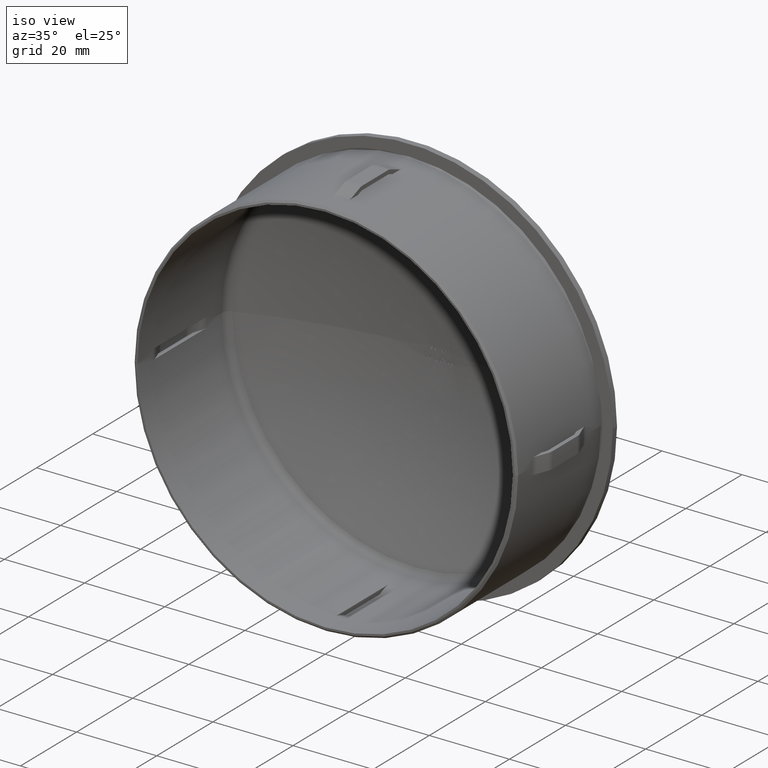
[diagram: clean part render]
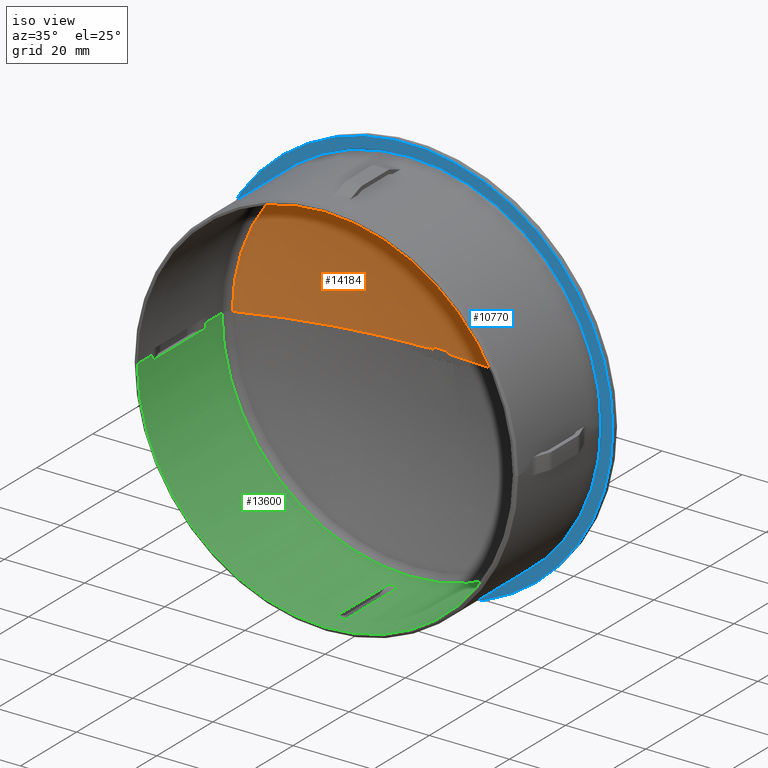
[diagram: same view with three faces highlighted in distinct colors, each labeled with its STEP entity id]
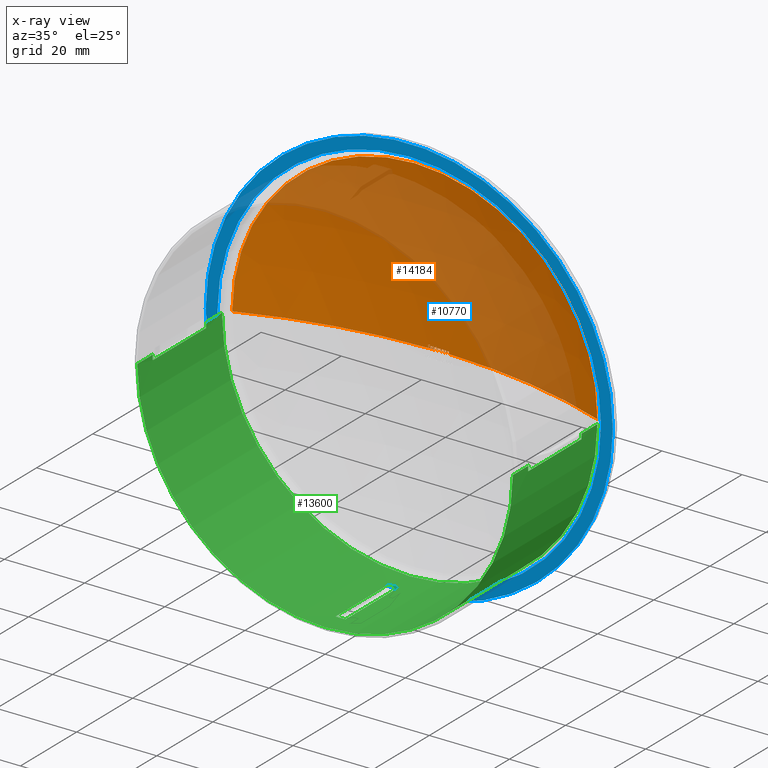
[diagram: x-ray of the same camera — body ghosted, the three highlighted faces saturated]
A machine part, iso view with three faces highlighted in distinct colors.
The next image is the same camera in x-ray (body ghosted, the three faces saturated) — at least one of them is partly hidden behind the body in this view.
Their STEP definitions:

[orange] entity #14184 — the highlighted spherical surface has radius 126.638 mm.
#65 = VERTEX_POINT ( 'NONE', #13784 ) ;
#116 = CARTESIAN_POINT ( 'NONE',  ( 1.113874654478329100, 40.49395068533862500, 0.5417085378907866600 ) ) ;
#142 = CARTESIAN_POINT ( 'NONE',  ( -2.182812500000023400, 40.47869841809005500, 0.7937500000000111700 ) ) ;
#146 = CARTESIAN_POINT ( 'NONE',  ( 2.442704646070592600, 40.47510240393526700, 0.5828538317450350200 ) ) ;
#160 = DIRECTION ( 'NONE',  ( -1.000000000000000000, 0.0000000000000000000, 0.0000000000000000000 ) ) ;
#256 = CARTESIAN_POINT ( 'NONE',  ( -1.874030332613674200, 40.48613294371286000, 4.759263301890666200E-012 ) ) ;
#288 = EDGE_CURVE ( 'NONE', #5728, #1700, #10845, .T. ) ;
#335 = ORIENTED_EDGE ( 'NONE', *, *, #288, .T. ) ;
#369 = ORIENTED_EDGE ( 'NONE', *, *, #14311, .T. ) ;
#458 = DIRECTION ( 'NONE',  ( -1.000000000000000000, -6.320148377769856400E-016, -0.0000000000000000000 ) ) ;
#462 = CARTESIAN_POINT ( 'NONE',  ( -0.1815919465855817300, 40.49855413779567200, 0.5773489675653843400 ) ) ;
#483 = EDGE_CURVE ( 'NONE', #8938, #10318, #667, .T. ) ;
#523 = CARTESIAN_POINT ( 'NONE',  ( -2.498277243589686500, -86.13761904761911100, 0.0000000000000000000 ) ) ;
#571 = VERTEX_POINT ( 'NONE', #14119 ) ;
#576 = EDGE_CURVE ( 'NONE', #11218, #11492, #11171, .T. ) ;
#579 = EDGE_CURVE ( 'NONE', #11806, #7008, #1690, .T. ) ;
#623 = VERTEX_POINT ( 'NONE', #14572 ) ;
#625 = CARTESIAN_POINT ( 'NONE',  ( -1.287299679487209100, 40.49084005459145900, 0.8141025641025752000 ) ) ;
#659 = CARTESIAN_POINT ( 'NONE',  ( 1.507645168752679500, 40.49000880974126900, 0.5092131814558219500 ) ) ;
#667 = CIRCLE ( 'NONE', #11274, 126.6373209808374600 ) ;
#677 = CIRCLE ( 'NONE', #12624, 126.6303318496846900 ) ;
#694 = CIRCLE ( 'NONE', #3098, 126.6188054265232100 ) ;
#722 = DIRECTION ( 'NONE',  ( 1.000000000000000000, 0.0000000000000000000, -1.224646799147353500E-016 ) ) ;
#726 = CIRCLE ( 'NONE', #5083, 126.6314832894040400 ) ;
#755 = B_SPLINE_CURVE_WITH_KNOTS ( 'NONE', 3,
 ( #2214, #11236, #11180, #13674, #2171, #11336 ),
 .UNSPECIFIED., .F., .F.,
 ( 4, 2, 4 ),
 ( 0.0000000000000000000, 0.0001076071497612918800, 0.0002152142995225837700 ),
 .UNSPECIFIED. ) ;
#757 = DIRECTION ( 'NONE',  ( -1.000000000000000000, -6.320148377769856400E-016, -0.0000000000000000000 ) ) ;
#765 = EDGE_CURVE ( 'NONE', #5449, #2779, #5142, .T. ) ;
#773 = AXIS2_PLACEMENT_3D ( 'NONE', #11762, #7200, #14033 ) ;
#774 = DIRECTION ( 'NONE',  ( 0.0000000000000000000, 0.0000000000000000000, -1.000000000000000000 ) ) ;
#780 = CARTESIAN_POINT ( 'NONE',  ( 1.736153452105818200, 40.48673328972336100, 0.5890140455116239500 ) ) ;
#818 = CARTESIAN_POINT ( 'NONE',  ( -0.3714342948718230600, 40.49945528140387600, 1.112441772578429000E-014 ) ) ;
#849 = CARTESIAN_POINT ( 'NONE',  ( -1.703891225962123500, 40.48853667362193700, -1.335820437918466300E-013 ) ) ;
#850 = AXIS2_PLACEMENT_3D ( 'NONE', #523, #2841, #14122 ) ;
#852 = B_SPLINE_CURVE_WITH_KNOTS ( 'NONE', 3,
 ( #14821, #4699, #9150, #1075, #2283, #12690 ),
 .UNSPECIFIED., .F., .F.,
 ( 4, 2, 4 ),
 ( 0.0000000000000000000, 0.0001240636173961032800, 0.0002481272347922065200 ),
 .UNSPECIFIED. ) ;
#894 = ORIENTED_EDGE ( 'NONE', *, *, #11177, .T. ) ;
#897 = CARTESIAN_POINT ( 'NONE',  ( 0.8609225207794702900, 40.49573620927573400, 0.5833033967726091200 ) ) ;
#905 = ORIENTED_EDGE ( 'NONE', *, *, #1456, .T. ) ;
#913 = CARTESIAN_POINT ( 'NONE',  ( -0.3002003205128486700, 40.49831574991742400, 0.5800480769230881300 ) ) ;
#948 = CARTESIAN_POINT ( 'NONE',  ( -1.968822051166393000, 40.48461693921296200, 0.1429498512476145600 ) ) ;
#952 = EDGE_CURVE ( 'NONE', #13918, #14369, #9070, .T. ) ;
#957 = CARTESIAN_POINT ( 'NONE',  ( -1.106361158164801600, 40.49439662035056400, 0.4435081468783821900 ) ) ;
#966 = CARTESIAN_POINT ( 'NONE',  ( 1.906847583824036200, 40.48490213269076300, 0.4345435017482310900 ) ) ;
#974 = VERTEX_POINT ( 'NONE', #2689 ) ;
#983 = CIRCLE ( 'NONE', #14764, 126.6376190476191100 ) ;
#1008 = CARTESIAN_POINT ( 'NONE',  ( 0.8577629413385673400, 40.49709499551512000, 6.835745725601507900E-012 ) ) ;
#1064 = EDGE_CURVE ( 'NONE', #8289, #12890, #1969, .T. ) ;
#1066 = CARTESIAN_POINT ( 'NONE',  ( 0.8577629413385673400, 40.49709499551512000, 6.835745725601507900E-012 ) ) ;
#1075 = CARTESIAN_POINT ( 'NONE',  ( 0.05059372269582837500, 40.49889518511244500, 0.5282113515575032100 ) ) ;
#1082 = CARTESIAN_POINT ( 'NONE',  ( -1.754959128073320100, 40.48783145951887300, 0.06188333623160507300 ) ) ;
#1093 = CARTESIAN_POINT ( 'NONE',  ( 2.152283653846129400, 40.48081644234412100, 0.4754231770833444700 ) ) ;
#1100 = CARTESIAN_POINT ( 'NONE',  ( 0.4831689009777119800, 40.49831045789626700, 0.4421491648293608400 ) ) ;
#1111 = VERTEX_POINT ( 'NONE', #5670 ) ;
#1129 = CARTESIAN_POINT ( 'NONE',  ( -2.053182659338479000, 40.48265060214616500, 0.4236794445332151000 ) ) ;
#1138 = DIRECTION ( 'NONE',  ( 5.169545160610235800E-015, -1.000000000000000000, -0.0000000000000000000 ) ) ;
#1146 = CARTESIAN_POINT ( 'NONE',  ( 0.0000000000000000000, -86.13761904761911100, 0.0000000000000000000 ) ) ;
#1154 = CARTESIAN_POINT ( 'NONE',  ( -1.798180839342977700, 40.48721807242277000, 0.06105769230770344300 ) ) ;
#1155 = EDGE_CURVE ( 'NONE', #9391, #6423, #852, .T. ) ;
#1188 = CARTESIAN_POINT ( 'NONE',  ( -0.3714342948717430600, -86.13761904761911100, 0.0000000000000000000 ) ) ;
#1209 = DIRECTION ( 'NONE',  ( 0.0000000000000000000, 0.0000000000000000000, -1.000000000000000000 ) ) ;
#1227 = CARTESIAN_POINT ( 'NONE',  ( 0.0000000000000000000, -86.13761904761911100, 0.4681089743589854600 ) ) ;
#1234 = CIRCLE ( 'NONE', #11930, 126.6350022508193500 ) ;
#1365 = DIRECTION ( 'NONE',  ( -1.000000000000000000, -6.320148377769856400E-016, -0.0000000000000000000 ) ) ;
#1376 = AXIS2_PLACEMENT_3D ( 'NONE', #14768, #12634, #3343 ) ;
#1399 = CARTESIAN_POINT ( 'NONE',  ( -2.080131132574111400, 40.48265933664092800, 0.2564008354875604900 ) ) ;
#1422 = CIRCLE ( 'NONE', #11570, 126.6321644984563800 ) ;
#1456 = EDGE_CURVE ( 'NONE', #12063, #13903, #6714, .T. ) ;
#1464 = EDGE_LOOP ( 'NONE', ( #6238, #11557, #12539, #8379, #13953, #8761, #10059, #7775, #4738, #335, #8214, #13899, #5616, #12711, #13249, #13691, #7440, #2723, #7504, #6508, #2598, #10907, #10337, #11209, #10194, #905, #13618, #6683, #369, #1638, #7549, #10605, #11018, #11133, #3621, #5446, #2359, #894, #12612, #9342, #6459, #7677, #11612, #14738, #6090, #1466, #2147, #10452, #13153, #14617, #6609, #11952, #9860, #8160, #13125, #8838, #13348, #8701, #5443, #8226, #10353, #1930, #10686, #3421, #11223 ) ) ;
#1466 = ORIENTED_EDGE ( 'NONE', *, *, #2028, .T. ) ;
#1469 = AXIS2_PLACEMENT_3D ( 'NONE', #10800, #5137, #6658 ) ;
#1477 = EDGE_CURVE ( 'NONE', #9671, #12255, #13527, .T. ) ;
#1550 = CARTESIAN_POINT ( 'NONE',  ( -2.081049679487208400, 40.48257127016664500, 0.2884339943910367300 ) ) ;
#1598 = CARTESIAN_POINT ( 'NONE',  ( 2.589863782051257800, 40.47316806890220400, 0.2962252103365495800 ) ) ;
#1638 = ORIENTED_EDGE ( 'NONE', *, *, #14399, .T. ) ;
#1641 = CARTESIAN_POINT ( 'NONE',  ( 1.701347155448683900, 40.48719531004392300, 0.5902243589743702000 ) ) ;
#1690 = B_SPLINE_CURVE_WITH_KNOTS ( 'NONE', 3,
 ( #3247, #780, #4347, #11191, #3142, #8883, #966, #12227, #13487, #9919 ),
 .UNSPECIFIED., .F., .F.,
 ( 4, 2, 2, 2, 4 ),
 ( 0.0000000000000000000, 0.0001035280284946486300, 0.0002070560569892972600, 0.0003105840854839457500, 0.0004141121139785942600 ),
 .UNSPECIFIED. ) ;
#1700 = VERTEX_POINT ( 'NONE', #14193 ) ;
#1709 = CARTESIAN_POINT ( 'NONE',  ( -0.2009732151805146700, 40.49855914770030600, 0.5697788243709537300 ) ) ;
#1739 = DIRECTION ( 'NONE',  ( 1.000000000000000000, 6.320148377769856400E-016, -0.0000000000000000000 ) ) ;
#1779 = B_SPLINE_CURVE_WITH_KNOTS ( 'NONE', 3,
 ( #13605, #6598, #8963, #9935, #14593, #2090, #7761, #897, #11163, #3271 ),
 .UNSPECIFIED., .F., .F.,
 ( 4, 2, 2, 2, 4 ),
 ( 0.0000000000000000000, 0.0001178459133988443100, 0.0002356918267976886100, 0.0003535377401965329300, 0.0004713836535953772300 ),
 .UNSPECIFIED. ) ;
#1795 = AXIS2_PLACEMENT_3D ( 'NONE', #11618, #9444, #11512 ) ;
#1831 = DIRECTION ( 'NONE',  ( 0.0000000000000000000, 0.0000000000000000000, -1.000000000000000000 ) ) ;
#1895 = CARTESIAN_POINT ( 'NONE',  ( 0.0000000000000000000, -86.13761904761911100, 0.5800480769230881300 ) ) ;
#1930 = ORIENTED_EDGE ( 'NONE', *, *, #1064, .T. ) ;
#1969 = B_SPLINE_CURVE_WITH_KNOTS ( 'NONE', 3,
 ( #10759, #7284, #5082, #7388, #8591, #8538 ),
 .UNSPECIFIED., .F., .F.,
 ( 4, 2, 4 ),
 ( 0.0000000000000000000, 0.0001371516647454723900, 0.0002743033294909447700 ),
 .UNSPECIFIED. ) ;
#1993 = CARTESIAN_POINT ( 'NONE',  ( -0.5342548076923403500, 40.49625622620121800, 0.8141025641025752000 ) ) ;
#2028 = EDGE_CURVE ( 'NONE', #10894, #12071, #5290, .T. ) ;
#2045 = DIRECTION ( 'NONE',  ( 1.000000000000000000, 0.0000000000000000000, 0.0000000000000000000 ) ) ;
#2083 = CIRCLE ( 'NONE', #11310, 126.6362906211263100 ) ;
#2090 = CARTESIAN_POINT ( 'NONE',  ( 0.7548045872638383700, 40.49664343793935500, 0.5309942296348032500 ) ) ;
#2093 = DIRECTION ( 'NONE',  ( 0.0000000000000000000, 0.0000000000000000000, -1.000000000000000000 ) ) ;
#2113 = CARTESIAN_POINT ( 'NONE',  ( -0.9925411531990873100, 40.49490548081447400, 0.5537938546887607400 ) ) ;
#2127 = CARTESIAN_POINT ( 'NONE',  ( -1.140078646096380500, 40.49467178910942500, 0.2252924640883967900 ) ) ;
#2141 = CARTESIAN_POINT ( 'NONE',  ( -0.2638665652800096800, 40.49864008596343700, 0.5242185973020440100 ) ) ;
#2147 = ORIENTED_EDGE ( 'NONE', *, *, #10124, .T. ) ;
#2158 = VERTEX_POINT ( 'NONE', #2958 ) ;
#2162 = CARTESIAN_POINT ( 'NONE',  ( 0.3293689539589274600, 40.49820590089823500, 0.5890257803546735700 ) ) ;
#2170 = CARTESIAN_POINT ( 'NONE',  ( 0.08443134014420265700, 40.49917182316205100, 0.4501414763621906000 ) ) ;
#2171 = CARTESIAN_POINT ( 'NONE',  ( -1.491914008717621700, 40.49083565267776000, 0.3106440784940217600 ) ) ;
#2189 = CARTESIAN_POINT ( 'NONE',  ( -0.2828457914227988100, 40.49868768505035600, 0.5023678109066037600 ) ) ;
#2204 = CARTESIAN_POINT ( 'NONE',  ( 0.4420740864398106100, 40.49812428812621300, 0.5298024236254356100 ) ) ;
#2206 = CARTESIAN_POINT ( 'NONE',  ( 2.589863782051337700, -86.13761904761911100, 0.0000000000000000000 ) ) ;
#2214 = CARTESIAN_POINT ( 'NONE',  ( -1.553950070112208200, 40.48957062692366500, 0.4760591947115496200 ) ) ;
#2241 = DIRECTION ( 'NONE',  ( 1.224646799147353200E-016, 6.330866933989015100E-031, 1.000000000000000000 ) ) ;
#2262 = CARTESIAN_POINT ( 'NONE',  ( 0.4935496794871513400, 40.49864846570351800, 0.3141927083333444500 ) ) ;
#2266 = CARTESIAN_POINT ( 'NONE',  ( -1.287299679487209100, 40.49345698660360400, 1.112441772578429000E-014 ) ) ;
#2268 = CIRCLE ( 'NONE', #6113, 126.6367538751607100 ) ;
#2283 = CARTESIAN_POINT ( 'NONE',  ( 0.07027421903086755700, 40.49904137580754300, 0.4894951906692235300 ) ) ;
#2287 = CARTESIAN_POINT ( 'NONE',  ( -0.9230864176357933500, 40.49663567643048600, 6.834850835292732900E-012 ) ) ;
#2301 = CIRCLE ( 'NONE', #14232, 126.6376190476191100 ) ;
#2331 = EDGE_CURVE ( 'NONE', #2903, #9731, #1779, .T. ) ;
#2350 = CARTESIAN_POINT ( 'NONE',  ( -2.081049679487208400, 40.48257127016664500, 0.2884339943910367300 ) ) ;
#2359 = ORIENTED_EDGE ( 'NONE', *, *, #10543, .T. ) ;
#2371 = VERTEX_POINT ( 'NONE', #11424 ) ;
#2372 = CARTESIAN_POINT ( 'NONE',  ( -2.182812499999943000, -86.13761904761911100, 0.0000000000000000000 ) ) ;
#2450 = CARTESIAN_POINT ( 'NONE',  ( 0.6360176282051007700, 40.49806707937033000, 0.2916140825320623900 ) ) ;
#2488 = CIRCLE ( 'NONE', #11429, 45.56968640515930200 ) ;
#2497 = AXIS2_PLACEMENT_3D ( 'NONE', #2621, #4833, #13965 ) ;
#2530 = EDGE_CURVE ( 'NONE', #3790, #6777, #983, .T. ) ;
#2531 = VERTEX_POINT ( 'NONE', #10865 ) ;
#2593 = CARTESIAN_POINT ( 'NONE',  ( -1.521354166666695400, 40.49077254446915900, 0.1499411558493699800 ) ) ;
#2598 = ORIENTED_EDGE ( 'NONE', *, *, #12585, .T. ) ;
#2605 = AXIS2_PLACEMENT_3D ( 'NONE', #12842, #10578, #12901 ) ;
#2606 = CARTESIAN_POINT ( 'NONE',  ( -1.934084801466865200, 40.48523203262823200, 0.02150612168951463600 ) ) ;
#2614 = EDGE_CURVE ( 'NONE', #12890, #5078, #6368, .T. ) ;
#2621 = CARTESIAN_POINT ( 'NONE',  ( -0.2671245571333954500, -86.13761904761911100, -0.5086869556894320100 ) ) ;
#2634 = B_SPLINE_CURVE_WITH_KNOTS ( 'NONE', 3,
 ( #2170, #11446, #6765, #9132, #14761, #10359, #4481, #13673 ),
 .UNSPECIFIED., .F., .F.,
 ( 4, 2, 2, 4 ),
 ( 0.0000000000000000000, 0.0001338898262623305200, 0.0002008347393934958100, 0.0002677796525246612000 ),
 .UNSPECIFIED. ) ;
#2689 = CARTESIAN_POINT ( 'NONE',  ( -2.498277243589766400, 40.47476436318948600, 0.3866987179487290600 ) ) ;
#2716 = EDGE_CURVE ( 'NONE', #8267, #4194, #7266, .T. ) ;
#2717 = CARTESIAN_POINT ( 'NONE',  ( -2.076355613942443900, 40.48278210726160600, 0.2243124107710218500 ) ) ;
#2723 = ORIENTED_EDGE ( 'NONE', *, *, #9620, .T. ) ;
#2749 = CARTESIAN_POINT ( 'NONE',  ( 1.918229166666712600, -86.13761904761911100, 0.0000000000000000000 ) ) ;
#2778 = CARTESIAN_POINT ( 'NONE',  ( 1.538589708259875200, 40.48950682326084700, 0.5404987622247022800 ) ) ;
#2779 = VERTEX_POINT ( 'NONE', #3704 ) ;
#2782 = CARTESIAN_POINT ( 'NONE',  ( -0.1614746362636222100, 40.49855557863156700, 0.5828893732747186800 ) ) ;
#2841 = DIRECTION ( 'NONE',  ( -1.000000000000000000, -6.320148377769856400E-016, -0.0000000000000000000 ) ) ;
#2848 = DIRECTION ( 'NONE',  ( -6.318716784570241000E-016, 1.000000000000000000, 0.0000000000000000000 ) ) ;
#2885 = CARTESIAN_POINT ( 'NONE',  ( 1.701347155448683900, 40.48719531004392300, 0.5902243589743702000 ) ) ;
#2903 = VERTEX_POINT ( 'NONE', #2450 ) ;
#2948 = CARTESIAN_POINT ( 'NONE',  ( -0.3714342948718230600, 40.49812684919688600, 0.5800480769230881300 ) ) ;
#2951 = DIRECTION ( 'NONE',  ( 1.000000000000000000, 0.0000000000000000000, -1.224646799147353500E-016 ) ) ;
#2958 = CARTESIAN_POINT ( 'NONE',  ( -1.874030332613674200, 40.48613294371286000, 4.759263301890666200E-012 ) ) ;
#2999 = CARTESIAN_POINT ( 'NONE',  ( -1.143714491090554600, 40.49440813621804100, 0.3312709574502290000 ) ) ;
#3016 = DIRECTION ( 'NONE',  ( 0.0000000000000000000, 0.0000000000000000000, -1.000000000000000000 ) ) ;
#3056 = VERTEX_POINT ( 'NONE', #12998 ) ;
#3098 = AXIS2_PLACEMENT_3D ( 'NONE', #2372, #7019, #10348 ) ;
#3142 = CARTESIAN_POINT ( 'NONE',  ( 1.859476554283574100, 40.48525379676388500, 0.5274411440378364800 ) ) ;
#3181 = DIRECTION ( 'NONE',  ( -1.000000000000000000, -6.320148377769856400E-016, -0.0000000000000000000 ) ) ;
#3190 = EDGE_CURVE ( 'NONE', #13903, #7827, #13694, .T. ) ;
#3247 = CARTESIAN_POINT ( 'NONE',  ( 1.701347155448683900, 40.48719531004392300, 0.5902243589743702000 ) ) ;
#3263 = CARTESIAN_POINT ( 'NONE',  ( -0.2354956324971449200, 40.49858814326690000, 0.5499938482189633500 ) ) ;
#3271 = CARTESIAN_POINT ( 'NONE',  ( 0.9406700721153572500, 40.49513079645321100, 0.5902243589743702000 ) ) ;
#3342 = CARTESIAN_POINT ( 'NONE',  ( -0.5342548076922604100, -86.13761904761911100, 0.0000000000000000000 ) ) ;
#3343 = DIRECTION ( 'NONE',  ( -1.000000000000000000, 0.0000000000000000000, 0.0000000000000000000 ) ) ;
#3408 = CIRCLE ( 'NONE', #9317, 126.6362906211263100 ) ;
#3420 = B_SPLINE_CURVE_WITH_KNOTS ( 'NONE', 3,
 ( #256, #9547, #2606, #6046, #3677, #10583, #6002, #2717, #1399, #1550 ),
 .UNSPECIFIED., .F., .F.,
 ( 4, 2, 2, 2, 4 ),
 ( 8.518635623988715200E-005, 0.0001792175327766087100, 0.0002732487093133303200, 0.0003672798858500517700, 0.0004613110623867733200 ),
 .UNSPECIFIED. ) ;
#3421 = ORIENTED_EDGE ( 'NONE', *, *, #4746, .T. ) ;
#3445 = DIRECTION ( 'NONE',  ( 6.318370935221633200E-016, -1.000000000000000000, 0.0000000000000000000 ) ) ;
#3461 = CARTESIAN_POINT ( 'NONE',  ( 2.372981770833309000, 40.47638946159469200, 0.5902243589743702000 ) ) ;
#3499 = CARTESIAN_POINT ( 'NONE',  ( 1.175360576923049500, 40.49321696712328100, 0.5800480769230881300 ) ) ;
#3502 = CARTESIAN_POINT ( 'NONE',  ( -0.9865214833324578200, 40.49617327352319100, 0.01660923644644391900 ) ) ;
#3516 = DIRECTION ( 'NONE',  ( 1.000000000000000000, 5.177178324978228000E-015, 0.0000000000000000000 ) ) ;
#3565 = CARTESIAN_POINT ( 'NONE',  ( 5.160808918905501900E-014, 32.01689943976368400, 0.0000000000000000000 ) ) ;
#3572 = VERTEX_POINT ( 'NONE', #2593 ) ;
#3602 = CIRCLE ( 'NONE', #12307, 126.6376190476191100 ) ;
#3618 = CIRCLE ( 'NONE', #14069, 126.6376190476191100 ) ;
#3621 = ORIENTED_EDGE ( 'NONE', *, *, #4059, .T. ) ;
#3625 = CARTESIAN_POINT ( 'NONE',  ( 2.589761193727327300, 40.47308869170936400, 0.3310490480453741100 ) ) ;
#3677 = CARTESIAN_POINT ( 'NONE',  ( -2.006897853348856800, 40.48407352959863900, 0.08300136449815209700 ) ) ;
#3704 = CARTESIAN_POINT ( 'NONE',  ( -0.3002003205128486700, 40.49873737314670300, 0.4792392828525752200 ) ) ;
#3732 = CARTESIAN_POINT ( 'NONE',  ( -1.616334709986323000, 40.48853087744430500, 0.5423899066799376900 ) ) ;
#3789 = CARTESIAN_POINT ( 'NONE',  ( -0.5342548076923403500, 40.49887304628864400, 1.112441772578429000E-014 ) ) ;
#3790 = VERTEX_POINT ( 'NONE', #6911 ) ;
#3800 = EDGE_CURVE ( 'NONE', #9042, #5728, #8361, .T. ) ;
#3835 = CARTESIAN_POINT ( 'NONE',  ( -2.569511217948741200, 40.47144117750158200, 0.7937500000000111700 ) ) ;
#3884 = CARTESIAN_POINT ( 'NONE',  ( 1.246594551282103900, -86.13761904761911100, 0.0000000000000000000 ) ) ;
#3887 = CARTESIAN_POINT ( 'NONE',  ( -0.1912927241915268800, 40.49855664536995200, 0.5735599340862481700 ) ) ;
#3896 = CIRCLE ( 'NONE', #10681, 126.6364920939077600 ) ;
#3897 = CARTESIAN_POINT ( 'NONE',  ( -1.664682473393367600, 40.48906426959216300, 0.01021285227223357000 ) ) ;
#3943 = B_SPLINE_CURVE_WITH_KNOTS ( 'NONE', 3,
 ( #7545, #2999, #10962, #957, #12222, #6719, #2113, #5388, #11287, #8983 ),
 .UNSPECIFIED., .F., .F.,
 ( 4, 2, 2, 2, 4 ),
 ( 0.0000000000000000000, 0.0001178444341299800800, 0.0002356888682599601700, 0.0003535333023899403000, 0.0004713777365199206600 ),
 .UNSPECIFIED. ) ;
#3950 = CARTESIAN_POINT ( 'NONE',  ( -2.498277243589766400, 40.47535488816704700, 1.112441772578428900E-014 ) ) ;
#3958 = AXIS2_PLACEMENT_3D ( 'NONE', #12077, #6480, #8790 ) ;
#4039 = VERTEX_POINT ( 'NONE', #10737 ) ;
#4059 = EDGE_CURVE ( 'NONE', #11218, #8593, #4126, .T. ) ;
#4080 = EDGE_CURVE ( 'NONE', #7735, #13811, #3602, .T. ) ;
#4084 = CARTESIAN_POINT ( 'NONE',  ( -1.287299679487129200, -86.13761904761911100, 0.0000000000000000000 ) ) ;
#4126 = CIRCLE ( 'NONE', #10282, 126.6115483285420400 ) ;
#4167 = CARTESIAN_POINT ( 'NONE',  ( -1.553950070112208200, 40.48957062692366500, 0.4760591947115496200 ) ) ;
#4184 = VERTEX_POINT ( 'NONE', #14329 ) ;
#4194 = VERTEX_POINT ( 'NONE', #625 ) ;
#4217 = VERTEX_POINT ( 'NONE', #849 ) ;
#4347 = CARTESIAN_POINT ( 'NONE',  ( 1.771073892251214600, 40.48627813513167000, 0.5828528003783671800 ) ) ;
#4363 = VERTEX_POINT ( 'NONE', #3499 ) ;
#4389 = DIRECTION ( 'NONE',  ( -1.000000000000000000, 0.0000000000000000000, 0.0000000000000000000 ) ) ;
#4393 = DIRECTION ( 'NONE',  ( 1.224646799147353200E-016, 6.330866933989015100E-031, 1.000000000000000000 ) ) ;
#4406 = DIRECTION ( 'NONE',  ( -1.000000000000000000, 0.0000000000000000000, 0.0000000000000000000 ) ) ;
#4408 = CARTESIAN_POINT ( 'NONE',  ( -0.2888316783541823900, 40.49870428410031300, 0.4948133354278164700 ) ) ;
#4424 = DIRECTION ( 'NONE',  ( -1.000000000000000000, -6.320148377769856400E-016, -0.0000000000000000000 ) ) ;
#4443 = DIRECTION ( 'NONE',  ( -1.000000000000000000, 0.0000000000000000000, 0.0000000000000000000 ) ) ;
#4447 = CARTESIAN_POINT ( 'NONE',  ( -1.144831730769263500, 40.49448935931295100, 0.2916140825320623900 ) ) ;
#4472 = CARTESIAN_POINT ( 'NONE',  ( 0.4922740388655519300, 40.49848145775315100, 0.3785562845962058800 ) ) ;
#4481 = CARTESIAN_POINT ( 'NONE',  ( 0.2747382818813308100, 40.49833264967836000, 0.5893377909098203000 ) ) ;
#4515 = CARTESIAN_POINT ( 'NONE',  ( 0.0000000000000000000, -86.13761904761911100, 0.3866987179487290600 ) ) ;
#4542 = DIRECTION ( 'NONE',  ( 1.000000000000000000, 6.320148377769856400E-016, -0.0000000000000000000 ) ) ;
#4552 = CARTESIAN_POINT ( 'NONE',  ( -2.080108026953721100, 40.48250716442505100, 0.3233699142222983300 ) ) ;
#4588 = AXIS2_PLACEMENT_3D ( 'NONE', #4515, #5599, #6695 ) ;
#4594 = DIRECTION ( 'NONE',  ( -6.318425403950293600E-016, 1.000000000000000000, 0.0000000000000000000 ) ) ;
#4609 = DIRECTION ( 'NONE',  ( -6.318380360046931400E-016, 1.000000000000000000, 0.0000000000000000000 ) ) ;
#4656 = CARTESIAN_POINT ( 'NONE',  ( -2.014267828525670100, 40.48306197029933900, 0.4821013621794982800 ) ) ;
#4699 = CARTESIAN_POINT ( 'NONE',  ( -0.05840257159376230400, 40.49862457965586100, 0.5888072035090838900 ) ) ;
#4708 = CARTESIAN_POINT ( 'NONE',  ( 2.081049679487235100, -86.13761904761911100, 0.0000000000000000000 ) ) ;
#4709 = CARTESIAN_POINT ( 'NONE',  ( -1.986338882442912000, 40.48337882993276100, 0.5155702470927420200 ) ) ;
#4738 = ORIENTED_EDGE ( 'NONE', *, *, #3800, .T. ) ;
#4746 = EDGE_CURVE ( 'NONE', #5078, #12980, #1234, .T. ) ;
#4765 = CARTESIAN_POINT ( 'NONE',  ( 2.407786157643168100, 40.47574280441102700, 0.5890141119224202600 ) ) ;
#4826 = CIRCLE ( 'NONE', #9582, 126.6376190476191100 ) ;
#4833 = DIRECTION ( 'NONE',  ( -0.4649210893991452300, -2.938370268957002000E-016, -0.8853521223964575500 ) ) ;
#4874 = AXIS2_PLACEMENT_3D ( 'NONE', #13772, #11450, #7986 ) ;
#4919 = CARTESIAN_POINT ( 'NONE',  ( -1.553950070112208200, 40.48957062692366500, 0.4760591947115496200 ) ) ;
#4968 = CIRCLE ( 'NONE', #14557, 126.6289628658262500 ) ;
#4979 = CARTESIAN_POINT ( 'NONE',  ( -0.2197440905448999300, 40.49856758306681600, 0.5608085436698829800 ) ) ;
#5022 = VERTEX_POINT ( 'NONE', #12202 ) ;
#5063 = CARTESIAN_POINT ( 'NONE',  ( 2.569039741785259500, 40.47307536063682700, 0.4689039261022389100 ) ) ;
#5070 = CARTESIAN_POINT ( 'NONE',  ( -2.182812500000023400, 40.48032107789341400, 0.4681089743589854600 ) ) ;
#5078 = VERTEX_POINT ( 'NONE', #12346 ) ;
#5079 = CARTESIAN_POINT ( 'NONE',  ( -0.1414824482901776100, 40.49855859818296000, 0.5877716836647805000 ) ) ;
#5082 = CARTESIAN_POINT ( 'NONE',  ( -0.7476072039273653500, 40.49647132792182400, 0.5804114450408827100 ) ) ;
#5083 = AXIS2_PLACEMENT_3D ( 'NONE', #3884, #1365, #8386 ) ;
#5094 = CARTESIAN_POINT ( 'NONE',  ( -0.1001727764423358400, 40.49858493319687400, 0.5902243589743703100 ) ) ;
#5111 = B_SPLINE_CURVE_WITH_KNOTS ( 'NONE', 3,
 ( #6995, #5758, #10407, #7025, #3897, #8207 ),
 .UNSPECIFIED., .F., .F.,
 ( 4, 2, 4 ),
 ( 2.710505431213761100E-020, 0.0001210207426605129900, 0.0002420414853210259600 ),
 .UNSPECIFIED. ) ;
#5137 = DIRECTION ( 'NONE',  ( 0.0000000000000000000, -0.0000000000000000000, 1.000000000000000000 ) ) ;
#5142 = CIRCLE ( 'NONE', #12163, 126.6372632277619200 ) ;
#5179 = EDGE_CURVE ( 'NONE', #12084, #11492, #2488, .T. ) ;
#5200 = CARTESIAN_POINT ( 'NONE',  ( 0.0000000000000000000, -86.13761904761911100, 0.0000000000000000000 ) ) ;
#5219 = DIRECTION ( 'NONE',  ( -1.000000000000000000, 0.0000000000000000000, 0.0000000000000000000 ) ) ;
#5244 = CARTESIAN_POINT ( 'NONE',  ( 0.0000000000000000000, -86.13761904761911100, 0.0000000000000000000 ) ) ;
#5284 = CARTESIAN_POINT ( 'NONE',  ( -1.358533653846183400, 40.49009585467384700, 0.8141025641025752000 ) ) ;
#5290 = B_SPLINE_CURVE_WITH_KNOTS ( 'NONE', 3,
 ( #2350, #4552, #6786, #1129, #11258, #4656 ),
 .UNSPECIFIED., .F., .F.,
 ( 4, 2, 4 ),
 ( 5.421010862427522200E-020, 0.0001047135199126370000, 0.0002094270398252739500 ),
 .UNSPECIFIED. ) ;
#5388 = CARTESIAN_POINT ( 'NONE',  ( -0.9199265318383245100, 40.49532132032069900, 0.5833034925619907700 ) ) ;
#5405 = EDGE_CURVE ( 'NONE', #1700, #12064, #2301, .T. ) ;
#5437 = CARTESIAN_POINT ( 'NONE',  ( -2.498277243589766400, 40.47335101798683600, 0.7123397435897547100 ) ) ;
#5443 = ORIENTED_EDGE ( 'NONE', *, *, #2530, .F. ) ;
#5446 = ORIENTED_EDGE ( 'NONE', *, *, #9567, .T. ) ;
#5449 = VERTEX_POINT ( 'NONE', #913 ) ;
#5480 = AXIS2_PLACEMENT_3D ( 'NONE', #1895, #3016, #5219 ) ;
#5550 = DIRECTION ( 'NONE',  ( 0.0000000000000000000, 0.0000000000000000000, 1.000000000000000000 ) ) ;
#5562 = CARTESIAN_POINT ( 'NONE',  ( -1.854561819451444200, 40.48640558352234800, 0.06571690854859803300 ) ) ;
#5574 = CARTESIAN_POINT ( 'NONE',  ( 0.9406700721153572500, 40.49513079645321100, 0.5902243589743702000 ) ) ;
#5599 = DIRECTION ( 'NONE',  ( 0.0000000000000000000, 0.0000000000000000000, 1.000000000000000000 ) ) ;
#5614 = DIRECTION ( 'NONE',  ( -1.000000000000000000, 0.0000000000000000000, 0.0000000000000000000 ) ) ;
#5616 = ORIENTED_EDGE ( 'NONE', *, *, #2331, .T. ) ;
#5643 = CARTESIAN_POINT ( 'NONE',  ( -1.490825320512849400, 40.49092633243086000, 0.2747596153846265100 ) ) ;
#5654 = B_SPLINE_CURVE_WITH_KNOTS ( 'NONE', 3,
 ( #10997, #14805, #9019, #7814, #948, #8025, #11381, #5562, #11278, #1154 ),
 .UNSPECIFIED., .F., .F.,
 ( 4, 2, 2, 2, 4 ),
 ( 1.084202172485504400E-019, 8.321969487943843100E-005, 0.0001664393897588767500, 0.0002496590846383150800, 0.0003328787795177534000 ),
 .UNSPECIFIED. ) ;
#5666 = EDGE_CURVE ( 'NONE', #9731, #8329, #10622, .T. ) ;
#5670 = CARTESIAN_POINT ( 'NONE',  ( -0.2197440905448999300, 40.49856758306681600, 0.5608085436698829800 ) ) ;
#5687 = CARTESIAN_POINT ( 'NONE',  ( 2.179280579521641700, 40.48023066614107500, 0.5092141770074037900 ) ) ;
#5691 = VERTEX_POINT ( 'NONE', #9468 ) ;
#5695 = CARTESIAN_POINT ( 'NONE',  ( 0.3617744789126884900, 40.49814398695986000, 0.5832879922562075300 ) ) ;
#5728 = VERTEX_POINT ( 'NONE', #12923 ) ;
#5729 = CARTESIAN_POINT ( 'NONE',  ( -1.584637920673105800, 40.48995270645881600, 0.1831730769230880400 ) ) ;
#5757 = VERTEX_POINT ( 'NONE', #8285 ) ;
#5758 = CARTESIAN_POINT ( 'NONE',  ( -1.541357321586448400, 40.49057419262778300, 0.1144945273963227400 ) ) ;
#5777 = DIRECTION ( 'NONE',  ( 1.000000000000000000, 6.320148377769856400E-016, -0.0000000000000000000 ) ) ;
#5798 = DIRECTION ( 'NONE',  ( 1.000000000000000000, 0.0000000000000000000, 0.0000000000000000000 ) ) ;
#5899 = SPHERICAL_SURFACE ( 'NONE', #1469, 126.6376190476191100 ) ;
#5911 = CIRCLE ( 'NONE', #14551, 126.6310760342226900 ) ;
#5936 = CARTESIAN_POINT ( 'NONE',  ( -1.636681254280220900, 40.48938053258189000, 0.1124702694823541300 ) ) ;
#5948 = CARTESIAN_POINT ( 'NONE',  ( 2.531106980132656200, 40.47360902156500400, 0.5274456329548939900 ) ) ;
#5953 = AXIS2_PLACEMENT_3D ( 'NONE', #2206, #4424, #13572 ) ;
#5984 = DIRECTION ( 'NONE',  ( -6.336331702122012400E-016, 1.000000000000000000, 0.0000000000000000000 ) ) ;
#6002 = CARTESIAN_POINT ( 'NONE',  ( -2.057658215095605800, 40.48317991689116700, 0.1639194162163193600 ) ) ;
#6046 = CARTESIAN_POINT ( 'NONE',  ( -1.985319800396312800, 40.48442725467116100, 0.05880249860738484500 ) ) ;
#6053 = CARTESIAN_POINT ( 'NONE',  ( -2.569511217948660800, -86.13761904761911100, 0.0000000000000000000 ) ) ;
#6076 = CIRCLE ( 'NONE', #3958, 126.6351314564303700 ) ;
#6090 = ORIENTED_EDGE ( 'NONE', *, *, #12700, .T. ) ;
#6113 = AXIS2_PLACEMENT_3D ( 'NONE', #1227, #10480, #4406 ) ;
#6238 = ORIENTED_EDGE ( 'NONE', *, *, #4080, .F. ) ;
#6329 = DIRECTION ( 'NONE',  ( 1.000000000000000000, 6.320148377769856400E-016, -0.0000000000000000000 ) ) ;
#6368 = CIRCLE ( 'NONE', #8375, 126.6361715363533700 ) ;
#6388 = DIRECTION ( 'NONE',  ( -1.000000000000000000, 0.0000000000000000000, 0.0000000000000000000 ) ) ;
#6392 = DIRECTION ( 'NONE',  ( 1.224646799147353200E-016, 6.330866933989015100E-031, 1.000000000000000000 ) ) ;
#6393 = CIRCLE ( 'NONE', #4588, 126.6370286375649200 ) ;
#6420 = DIRECTION ( 'NONE',  ( 1.224646799147353200E-016, 6.330866933989015100E-031, 1.000000000000000000 ) ) ;
#6423 = VERTEX_POINT ( 'NONE', #12643 ) ;
#6459 = ORIENTED_EDGE ( 'NONE', *, *, #8732, .T. ) ;
#6480 = DIRECTION ( 'NONE',  ( 0.0000000000000000000, 0.0000000000000000000, -1.000000000000000000 ) ) ;
#6508 = ORIENTED_EDGE ( 'NONE', *, *, #12017, .T. ) ;
#6530 = EDGE_CURVE ( 'NONE', #4039, #8267, #677, .T. ) ;
#6547 = CARTESIAN_POINT ( 'NONE',  ( -0.3002003205128486700, 40.49873737314670300, 0.4792392828525752200 ) ) ;
#6598 = CARTESIAN_POINT ( 'NONE',  ( 0.6371348814399621100, 40.49797014590203000, 0.3312714386314030100 ) ) ;
#6603 = VERTEX_POINT ( 'NONE', #2948 ) ;
#6609 = ORIENTED_EDGE ( 'NONE', *, *, #10371, .T. ) ;
#6658 = DIRECTION ( 'NONE',  ( 1.000000000000000000, 5.150570832526580500E-015, 0.0000000000000000000 ) ) ;
#6683 = ORIENTED_EDGE ( 'NONE', *, *, #11080, .T. ) ;
#6695 = DIRECTION ( 'NONE',  ( 1.000000000000000000, 0.0000000000000000000, 0.0000000000000000000 ) ) ;
#6714 = CIRCLE ( 'NONE', #10725, 126.6205188359351400 ) ;
#6719 = CARTESIAN_POINT ( 'NONE',  ( -1.026044922597567000, 40.49473620607345500, 0.5309941400729659700 ) ) ;
#6720 = CARTESIAN_POINT ( 'NONE',  ( 0.7379294569837952000, 40.49785429731369400, 0.05663422342603124900 ) ) ;
#6765 = CARTESIAN_POINT ( 'NONE',  ( 0.1340441813128291100, 40.49884714573165900, 0.5253963629012234900 ) ) ;
#6766 = CARTESIAN_POINT ( 'NONE',  ( 1.175360576923049500, 40.49366311152642300, 0.4727201021634726600 ) ) ;
#6769 = CARTESIAN_POINT ( 'NONE',  ( 1.409415064102530000, 40.49082819649520100, 0.5800480769230881300 ) ) ;
#6772 = CARTESIAN_POINT ( 'NONE',  ( 45.56968640515934500, 32.01689943976391100, 0.0000000000000000000 ) ) ;
#6776 = CARTESIAN_POINT ( 'NONE',  ( -0.6054887820512346900, -86.13761904761911100, 0.0000000000000000000 ) ) ;
#6777 = VERTEX_POINT ( 'NONE', #2266 ) ;
#6784 = CARTESIAN_POINT ( 'NONE',  ( -1.798180839342977700, 40.48721807242277000, 0.06105769230770344300 ) ) ;
#6786 = CARTESIAN_POINT ( 'NONE',  ( -2.075606079556870500, 40.48248664858572700, 0.3583885712774834100 ) ) ;
#6824 = CARTESIAN_POINT ( 'NONE',  ( 0.0000000000000000000, -86.13761904761911100, 0.5800480769230881300 ) ) ;
#6844 = CARTESIAN_POINT ( 'NONE',  ( -2.014267828525670100, 40.48306197029933900, 0.4821013621794982800 ) ) ;
#6853 = CARTESIAN_POINT ( 'NONE',  ( 2.286276745625986700, 40.47803720393639500, 0.5804605115761479700 ) ) ;
#6889 = CARTESIAN_POINT ( 'NONE',  ( -1.953370138373490100, 40.48376727624933100, 0.5452541353300315300 ) ) ;
#6911 = CARTESIAN_POINT ( 'NONE',  ( -0.9230864176357933500, 40.49663567643048600, 6.834850835292732900E-012 ) ) ;
#6920 = CARTESIAN_POINT ( 'NONE',  ( 1.032315919548758600, 40.49446512044755800, 0.5815505247005169400 ) ) ;
#6928 = DIRECTION ( 'NONE',  ( -1.000000000000000000, -6.320148377769856400E-016, -0.0000000000000000000 ) ) ;
#6995 = CARTESIAN_POINT ( 'NONE',  ( -1.521354166666695400, 40.49077254446915900, 0.1499411558493699800 ) ) ;
#6996 = CARTESIAN_POINT ( 'NONE',  ( 0.0000000000000000000, -86.13761904761911100, 0.0000000000000000000 ) ) ;
#7008 = VERTEX_POINT ( 'NONE', #13507 ) ;
#7019 = DIRECTION ( 'NONE',  ( -1.000000000000000000, -6.320148377769856400E-016, -0.0000000000000000000 ) ) ;
#7025 = CARTESIAN_POINT ( 'NONE',  ( -1.627459368164117800, 40.48954537573586500, 0.02875158023622922900 ) ) ;
#7029 = CARTESIAN_POINT ( 'NONE',  ( 0.9863697275037531800, 40.49479716887201200, 0.5889703949718766400 ) ) ;
#7107 = EDGE_CURVE ( 'NONE', #2531, #974, #6393, .T. ) ;
#7200 = DIRECTION ( 'NONE',  ( 1.000000000000000000, 6.320148377769856400E-016, -0.0000000000000000000 ) ) ;
#7206 = EDGE_CURVE ( 'NONE', #14369, #11314, #2268, .T. ) ;
#7221 = DIRECTION ( 'NONE',  ( -6.336780635186408300E-016, 1.000000000000000000, 0.0000000000000000000 ) ) ;
#7263 = CARTESIAN_POINT ( 'NONE',  ( 0.2971792367788179700, 40.49827585488159800, 0.5902243589743702000 ) ) ;
#7266 = CIRCLE ( 'NONE', #12187, 126.6350022508193500 ) ;
#7284 = CARTESIAN_POINT ( 'NONE',  ( -0.7940612029122096100, 40.49614971947716700, 0.5888646038476990100 ) ) ;
#7370 = CARTESIAN_POINT ( 'NONE',  ( -1.697065521930102300, 40.48730122561327200, 0.5814670773418358900 ) ) ;
#7387 = EDGE_CURVE ( 'NONE', #974, #13417, #10298, .T. ) ;
#7388 = CARTESIAN_POINT ( 'NONE',  ( -0.6670613844786992300, 40.49711040061059500, 0.5375554860396919400 ) ) ;
#7440 = ORIENTED_EDGE ( 'NONE', *, *, #8537, .T. ) ;
#7475 = CIRCLE ( 'NONE', #11908, 126.6370743290229900 ) ;
#7487 = AXIS2_PLACEMENT_3D ( 'NONE', #13391, #4393, #8991 ) ;
#7501 = CIRCLE ( 'NONE', #5953, 126.6111336480339400 ) ;
#7504 = ORIENTED_EDGE ( 'NONE', *, *, #1477, .T. ) ;
#7545 = CARTESIAN_POINT ( 'NONE',  ( -1.144831730769263500, 40.49448935931295100, 0.2916140825320623900 ) ) ;
#7549 = ORIENTED_EDGE ( 'NONE', *, *, #10439, .T. ) ;
#7571 = DIRECTION ( 'NONE',  ( 6.336417445549610200E-016, -1.000000000000000000, 0.0000000000000000000 ) ) ;
#7621 = CARTESIAN_POINT ( 'NONE',  ( -2.182812499999943000, -86.13761904761911100, 0.0000000000000000000 ) ) ;
#7642 = B_SPLINE_CURVE_WITH_KNOTS ( 'NONE', 3,
 ( #13124, #659, #2778, #10751, #8491, #2885 ),
 .UNSPECIFIED., .F., .F.,
 ( 4, 2, 4 ),
 ( 1.084202172485504400E-019, 0.0001295065597511004400, 0.0002590131195022007700 ),
 .UNSPECIFIED. ) ;
#7665 = EDGE_CURVE ( 'NONE', #12980, #13811, #3896, .T. ) ;
#7677 = ORIENTED_EDGE ( 'NONE', *, *, #7107, .T. ) ;
#7707 = EDGE_CURVE ( 'NONE', #12064, #2903, #14514, .T. ) ;
#7735 = VERTEX_POINT ( 'NONE', #818 ) ;
#7761 = CARTESIAN_POINT ( 'NONE',  ( 0.7883081225546702000, 40.49634155062676700, 0.5537937921588892400 ) ) ;
#7770 = AXIS2_PLACEMENT_3D ( 'NONE', #9735, #1831, #6388 ) ;
#7775 = ORIENTED_EDGE ( 'NONE', *, *, #14578, .T. ) ;
#7777 = EDGE_CURVE ( 'NONE', #65, #12063, #8175, .T. ) ;
#7814 = CARTESIAN_POINT ( 'NONE',  ( -1.984274235427135000, 40.48434678834611600, 0.1666681292160993600 ) ) ;
#7827 = VERTEX_POINT ( 'NONE', #11645 ) ;
#7855 = AXIS2_PLACEMENT_3D ( 'NONE', #7621, #757, #7571 ) ;
#7914 = CARTESIAN_POINT ( 'NONE',  ( 0.0000000000000000000, -86.13761904761911100, 0.2747596153846265100 ) ) ;
#7961 = DIRECTION ( 'NONE',  ( 6.318401168252133200E-016, -1.000000000000000000, 0.0000000000000000000 ) ) ;
#7968 = CARTESIAN_POINT ( 'NONE',  ( 0.4749761061873474800, 40.49822674046389900, 0.4738876851682010100 ) ) ;
#7986 = DIRECTION ( 'NONE',  ( -1.000000000000000000, 0.0000000000000000000, 0.0000000000000000000 ) ) ;
#8025 = CARTESIAN_POINT ( 'NONE',  ( -1.929686942831498700, 40.48525824097969000, 0.1029402410940412800 ) ) ;
#8043 = CARTESIAN_POINT ( 'NONE',  ( -1.143939769158731400, 40.49457352248306600, 0.2585683062583750100 ) ) ;
#8068 = CARTESIAN_POINT ( 'NONE',  ( 0.2971792367788179700, 40.49827585488159800, 0.5902243589743702000 ) ) ;
#8114 = CARTESIAN_POINT ( 'NONE',  ( -2.498277243589766400, 40.47448954730238300, 0.4681089743589854600 ) ) ;
#8157 = CARTESIAN_POINT ( 'NONE',  ( 2.504332051209118100, 40.47404010070388800, 0.5512228516438129100 ) ) ;
#8160 = ORIENTED_EDGE ( 'NONE', *, *, #14191, .T. ) ;
#8175 = CIRCLE ( 'NONE', #4874, 126.6376190476191100 ) ;
#8179 = CIRCLE ( 'NONE', #12483, 126.6230901333325100 ) ;
#8186 = EDGE_CURVE ( 'NONE', #4039, #4217, #3618, .T. ) ;
#8207 = CARTESIAN_POINT ( 'NONE',  ( -1.703891225962123500, 40.48853667362193700, -1.335820437918466300E-013 ) ) ;
#8214 = ORIENTED_EDGE ( 'NONE', *, *, #5405, .T. ) ;
#8226 = ORIENTED_EDGE ( 'NONE', *, *, #13996, .T. ) ;
#8267 = VERTEX_POINT ( 'NONE', #5284 ) ;
#8285 = CARTESIAN_POINT ( 'NONE',  ( 1.246594551282023800, 40.49386424178492700, 1.112441772578429000E-014 ) ) ;
#8289 = VERTEX_POINT ( 'NONE', #10005 ) ;
#8329 = VERTEX_POINT ( 'NONE', #6766 ) ;
#8340 = B_SPLINE_CURVE_WITH_KNOTS ( 'NONE', 3,
 ( #6844, #4709, #6889, #9199, #13835, #12499 ),
 .UNSPECIFIED., .F., .F.,
 ( 4, 2, 4 ),
 ( 2.168404344971008900E-019, 0.0001304028751664210000, 0.0002608057503328417800 ),
 .UNSPECIFIED. ) ;
#8361 = B_SPLINE_CURVE_WITH_KNOTS ( 'NONE', 3,
 ( #8068, #2162, #5695, #12569, #2204, #7968, #1100, #4472, #10132, #2262 ),
 .UNSPECIFIED., .F., .F.,
 ( 4, 2, 2, 2, 4 ),
 ( 0.0000000000000000000, 9.579733585471584200E-005, 0.0001915946717094316800, 0.0002873920075641473100, 0.0003831893434188629300 ),
 .UNSPECIFIED. ) ;
#8365 = EDGE_CURVE ( 'NONE', #14554, #8938, #755, .T. ) ;
#8375 = AXIS2_PLACEMENT_3D ( 'NONE', #6776, #4542, #4594 ) ;
#8379 = ORIENTED_EDGE ( 'NONE', *, *, #765, .T. ) ;
#8380 = CARTESIAN_POINT ( 'NONE',  ( -1.787527544070541800, 40.48600804675521700, 0.5902243589743702000 ) ) ;
#8386 = DIRECTION ( 'NONE',  ( 6.318659329494362400E-016, -1.000000000000000000, 0.0000000000000000000 ) ) ;
#8430 = DIRECTION ( 'NONE',  ( 1.000000000000000000, 6.320148377769856400E-016, -0.0000000000000000000 ) ) ;
#8477 = CARTESIAN_POINT ( 'NONE',  ( 2.578481219168756100, 40.47300597516709800, 0.4345478588765248600 ) ) ;
#8491 = CARTESIAN_POINT ( 'NONE',  ( 1.657896164604249200, 40.48778566454755900, 0.5888209777933884900 ) ) ;
#8535 = CARTESIAN_POINT ( 'NONE',  ( -0.1207382318788705600, 40.49857223450328500, 0.5894585748930371000 ) ) ;
#8537 = EDGE_CURVE ( 'NONE', #3056, #5757, #726, .T. ) ;
#8538 = CARTESIAN_POINT ( 'NONE',  ( -0.6054887820513148400, 40.49768848151065700, 0.4677909655448829800 ) ) ;
#8566 = EDGE_CURVE ( 'NONE', #5691, #3572, #12897, .T. ) ;
#8591 = CARTESIAN_POINT ( 'NONE',  ( -0.6338426832186659900, 40.49741828563803400, 0.5042353810809918600 ) ) ;
#8593 = VERTEX_POINT ( 'NONE', #3835 ) ;
#8600 = VERTEX_POINT ( 'NONE', #11805 ) ;
#8615 = CARTESIAN_POINT ( 'NONE',  ( 1.175360576923129700, -86.13761904761911100, 0.0000000000000000000 ) ) ;
#8616 = FACE_OUTER_BOUND ( 'NONE', #1464, .T. ) ;
#8649 = CARTESIAN_POINT ( 'NONE',  ( -1.358533653846103500, -86.13761904761911100, 0.0000000000000000000 ) ) ;
#8670 = EDGE_CURVE ( 'NONE', #4194, #6777, #5911, .T. ) ;
#8674 = EDGE_CURVE ( 'NONE', #2371, #11806, #7642, .T. ) ;
#8699 = CARTESIAN_POINT ( 'NONE',  ( 1.409415064102530000, 40.49215670526999800, 1.112441772578429000E-014 ) ) ;
#8701 = ORIENTED_EDGE ( 'NONE', *, *, #8670, .T. ) ;
#8732 = EDGE_CURVE ( 'NONE', #11314, #2531, #9141, .T. ) ;
#8761 = ORIENTED_EDGE ( 'NONE', *, *, #12490, .T. ) ;
#8790 = DIRECTION ( 'NONE',  ( -1.000000000000000000, 0.0000000000000000000, 0.0000000000000000000 ) ) ;
#8838 = ORIENTED_EDGE ( 'NONE', *, *, #6530, .T. ) ;
#8856 = CARTESIAN_POINT ( 'NONE',  ( -0.2506702806401600000, 40.49861038365359900, 0.5380362064935128000 ) ) ;
#8883 = CARTESIAN_POINT ( 'NONE',  ( 1.897407467141657600, 40.48492141747663500, 0.4688983364900725600 ) ) ;
#8920 = EDGE_CURVE ( 'NONE', #9801, #12084, #10716, .T. ) ;
#8938 = VERTEX_POINT ( 'NONE', #5643 ) ;
#8949 = CARTESIAN_POINT ( 'NONE',  ( -1.787527544070541800, 40.48600804675521700, 0.5902243589743702000 ) ) ;
#8958 = CARTESIAN_POINT ( 'NONE',  ( -0.2945174262560245600, 40.49872138362948000, 0.4870242475181635900 ) ) ;
#8963 = CARTESIAN_POINT ( 'NONE',  ( 0.6432529044079112700, 40.49782986438458500, 0.3707171690301393500 ) ) ;
#8976 = CARTESIAN_POINT ( 'NONE',  ( 2.589863782051257800, 40.47316806890220400, 0.2962252103365495800 ) ) ;
#8983 = CARTESIAN_POINT ( 'NONE',  ( -0.8401792868590071100, 40.49583740059566100, 0.5902243589743702000 ) ) ;
#8984 = CARTESIAN_POINT ( 'NONE',  ( 0.6360176282051007700, 40.49806707937033000, 0.2916140825320623900 ) ) ;
#8991 = DIRECTION ( 'NONE',  ( 1.000000000000000000, 0.0000000000000000000, -1.224646799147353500E-016 ) ) ;
#9019 = CARTESIAN_POINT ( 'NONE',  ( -2.004842098219418800, 40.48394269765556400, 0.2192350789100516700 ) ) ;
#9042 = VERTEX_POINT ( 'NONE', #7263 ) ;
#9065 = DIRECTION ( 'NONE',  ( -1.000000000000000000, 0.0000000000000000000, 0.0000000000000000000 ) ) ;
#9070 = CIRCLE ( 'NONE', #850, 126.6129739357861300 ) ;
#9129 = EDGE_CURVE ( 'NONE', #8329, #4363, #1422, .T. ) ;
#9132 = CARTESIAN_POINT ( 'NONE',  ( 0.1898490129411216600, 40.49860707284165800, 0.5632536172339832600 ) ) ;
#9141 = CIRCLE ( 'NONE', #7855, 126.6188054265232100 ) ;
#9150 = CARTESIAN_POINT ( 'NONE',  ( -0.01697959251618720600, 40.49868952408923000, 0.5773794229291883100 ) ) ;
#9166 = CARTESIAN_POINT ( 'NONE',  ( 2.329531608983975500, 40.47721034024139200, 0.5888210045682922300 ) ) ;
#9199 = CARTESIAN_POINT ( 'NONE',  ( -1.875034404656301900, 40.48478756097068000, 0.5820843394449027900 ) ) ;
#9298 = CARTESIAN_POINT ( 'NONE',  ( -1.712168677276562700, 40.48841196778764800, 0.07173199883787286000 ) ) ;
#9317 = AXIS2_PLACEMENT_3D ( 'NONE', #6824, #12476, #5614 ) ;
#9342 = ORIENTED_EDGE ( 'NONE', *, *, #7206, .T. ) ;
#9391 = VERTEX_POINT ( 'NONE', #5094 ) ;
#9417 = CARTESIAN_POINT ( 'NONE',  ( -1.742362065816233500, 40.48665104901410700, 0.5890642207675050900 ) ) ;
#9424 = CARTESIAN_POINT ( 'NONE',  ( 1.175360576923049500, 40.49366311152642300, 0.4727201021634726600 ) ) ;
#9444 = DIRECTION ( 'NONE',  ( -1.000000000000000000, -6.320148377769856400E-016, -0.0000000000000000000 ) ) ;
#9468 = CARTESIAN_POINT ( 'NONE',  ( -1.584637920673105800, 40.48995270645881600, 0.1831730769230880400 ) ) ;
#9547 = CARTESIAN_POINT ( 'NONE',  ( -1.904434914079629700, 40.48568295619453700, 0.007904486023823018700 ) ) ;
#9567 = EDGE_CURVE ( 'NONE', #8593, #11631, #6076, .T. ) ;
#9578 = AXIS2_PLACEMENT_3D ( 'NONE', #10290, #10185, #7961 ) ;
#9582 = AXIS2_PLACEMENT_3D ( 'NONE', #6996, #2241, #11465 ) ;
#9599 = CIRCLE ( 'NONE', #1376, 126.6362906211263100 ) ;
#9613 = CARTESIAN_POINT ( 'NONE',  ( -0.1715918185061057200, 40.49855405056711500, 0.5804186470067266300 ) ) ;
#9620 = EDGE_CURVE ( 'NONE', #5757, #9671, #11780, .T. ) ;
#9646 = CARTESIAN_POINT ( 'NONE',  ( -0.6054887820513148400, 40.49768848151065700, 0.4677909655448829800 ) ) ;
#9669 = CARTESIAN_POINT ( 'NONE',  ( -0.2103669897498929300, 40.49856401080670300, 0.5652894666381855800 ) ) ;
#9671 = VERTEX_POINT ( 'NONE', #8699 ) ;
#9674 = CARTESIAN_POINT ( 'NONE',  ( 0.0000000000000000000, -86.13761904761911100, 0.0000000000000000000 ) ) ;
#9675 = EDGE_CURVE ( 'NONE', #623, #8289, #3943, .T. ) ;
#9731 = VERTEX_POINT ( 'NONE', #5574 ) ;
#9735 = CARTESIAN_POINT ( 'NONE',  ( 0.0000000000000000000, -86.13761904761911100, 0.0000000000000000000 ) ) ;
#9795 = EDGE_CURVE ( 'NONE', #4363, #3056, #3408, .T. ) ;
#9801 = VERTEX_POINT ( 'NONE', #12530 ) ;
#9807 = DIRECTION ( 'NONE',  ( 6.318679650783825200E-016, -1.000000000000000000, 0.0000000000000000000 ) ) ;
#9839 = CARTESIAN_POINT ( 'NONE',  ( 2.152283653846129400, 40.48081644234412100, 0.4754231770833444700 ) ) ;
#9860 = ORIENTED_EDGE ( 'NONE', *, *, #8566, .T. ) ;
#9919 = CARTESIAN_POINT ( 'NONE',  ( 1.918229166666632500, 40.48512458692233900, 0.2962252103365495800 ) ) ;
#9935 = CARTESIAN_POINT ( 'NONE',  ( 0.6744886113843516800, 40.49743333398438900, 0.4435088328242279300 ) ) ;
#10005 = CARTESIAN_POINT ( 'NONE',  ( -0.8401792868590071100, 40.49583740059566100, 0.5902243589743702000 ) ) ;
#10059 = ORIENTED_EDGE ( 'NONE', *, *, #1155, .T. ) ;
#10074 = CARTESIAN_POINT ( 'NONE',  ( -45.56968640515990600, 32.01689943976344200, 5.580677059422698500E-015 ) ) ;
#10079 = VERTEX_POINT ( 'NONE', #8949 ) ;
#10085 = DIRECTION ( 'NONE',  ( 6.318785096124631000E-016, -1.000000000000000000, 0.0000000000000000000 ) ) ;
#10100 = DIRECTION ( 'NONE',  ( 6.318409409990246500E-016, -1.000000000000000000, 0.0000000000000000000 ) ) ;
#10124 = EDGE_CURVE ( 'NONE', #12071, #10079, #8340, .T. ) ;
#10132 = CARTESIAN_POINT ( 'NONE',  ( 0.4933926279743916000, 40.49856911527039200, 0.3464218311954028200 ) ) ;
#10140 = EDGE_CURVE ( 'NONE', #2158, #13417, #4826, .T. ) ;
#10147 = CARTESIAN_POINT ( 'NONE',  ( 0.7943282338207430200, 40.49752467186188200, 0.01660914266429277000 ) ) ;
#10150 = CARTESIAN_POINT ( 'NONE',  ( 2.081049679487154700, 40.48289978831602600, 1.112441772578429000E-014 ) ) ;
#10176 = CARTESIAN_POINT ( 'NONE',  ( -0.2705297121099340400, 40.49865508343106800, 0.5172417275698434300 ) ) ;
#10185 = DIRECTION ( 'NONE',  ( -1.000000000000000000, -6.320148377769856400E-016, -0.0000000000000000000 ) ) ;
#10194 = ORIENTED_EDGE ( 'NONE', *, *, #7777, .T. ) ;
#10216 = CARTESIAN_POINT ( 'NONE',  ( -0.3002003205127686300, -86.13761904761911100, 0.0000000000000000000 ) ) ;
#10272 = CARTESIAN_POINT ( 'NONE',  ( -1.042919992246923700, 40.49570976879977000, 0.05663438814043673200 ) ) ;
#10282 = AXIS2_PLACEMENT_3D ( 'NONE', #6053, #8430, #7221 ) ;
#10290 = CARTESIAN_POINT ( 'NONE',  ( 0.4935496794872313900, -86.13761904761911100, 0.0000000000000000000 ) ) ;
#10298 = CIRCLE ( 'NONE', #1795, 126.6129739357861300 ) ;
#10318 = VERTEX_POINT ( 'NONE', #14067 ) ;
#10337 = ORIENTED_EDGE ( 'NONE', *, *, #579, .T. ) ;
#10346 = DIRECTION ( 'NONE',  ( 0.0000000000000000000, 0.0000000000000000000, 1.000000000000000000 ) ) ;
#10348 = DIRECTION ( 'NONE',  ( 6.336417445549610200E-016, -1.000000000000000000, 0.0000000000000000000 ) ) ;
#10353 = ORIENTED_EDGE ( 'NONE', *, *, #9675, .T. ) ;
#10359 = CARTESIAN_POINT ( 'NONE',  ( 0.2521343281998442200, 40.49839118796971600, 0.5868509604245971700 ) ) ;
#10371 = EDGE_CURVE ( 'NONE', #10318, #571, #5654, .T. ) ;
#10405 = B_SPLINE_CURVE_WITH_KNOTS ( 'NONE', 3,
 ( #1093, #5687, #13700, #6853, #9166, #3461 ),
 .UNSPECIFIED., .F., .F.,
 ( 4, 2, 4 ),
 ( 0.0000000000000000000, 0.0001295155056873725100, 0.0002590310113747450100 ),
 .UNSPECIFIED. ) ;
#10407 = CARTESIAN_POINT ( 'NONE',  ( -1.564930463878003500, 40.49031087798759600, 0.08109221070760960800 ) ) ;
#10422 = CARTESIAN_POINT ( 'NONE',  ( -1.608779022707268700, 40.48970247453439000, 0.1473127590600162300 ) ) ;
#10435 = VERTEX_POINT ( 'NONE', #8976 ) ;
#10439 = EDGE_CURVE ( 'NONE', #10435, #9801, #7501, .T. ) ;
#10452 = ORIENTED_EDGE ( 'NONE', *, *, #10647, .T. ) ;
#10480 = DIRECTION ( 'NONE',  ( 0.0000000000000000000, 0.0000000000000000000, -1.000000000000000000 ) ) ;
#10543 = EDGE_CURVE ( 'NONE', #11631, #4184, #694, .T. ) ;
#10578 = DIRECTION ( 'NONE',  ( -1.000000000000000000, -6.320148377769856400E-016, -0.0000000000000000000 ) ) ;
#10583 = CARTESIAN_POINT ( 'NONE',  ( -2.043048645656528000, 40.48345069224261300, 0.1349425962385623600 ) ) ;
#10605 = ORIENTED_EDGE ( 'NONE', *, *, #8920, .T. ) ;
#10622 = B_SPLINE_CURVE_WITH_KNOTS ( 'NONE', 3,
 ( #13859, #7029, #6920, #116, #10690, #9424 ),
 .UNSPECIFIED., .F., .F.,
 ( 4, 2, 4 ),
 ( 0.0000000000000000000, 0.0001367976662996675100, 0.0002735953325993350200 ),
 .UNSPECIFIED. ) ;
#10647 = EDGE_CURVE ( 'NONE', #10079, #14554, #11220, .T. ) ;
#10681 = AXIS2_PLACEMENT_3D ( 'NONE', #3342, #3181, #10100 ) ;
#10686 = ORIENTED_EDGE ( 'NONE', *, *, #2614, .T. ) ;
#10690 = CARTESIAN_POINT ( 'NONE',  ( 1.147137709301102600, 40.49379000476072600, 0.5089009054234898700 ) ) ;
#10704 = DIRECTION ( 'NONE',  ( 6.319078159060592500E-016, -1.000000000000000000, 0.0000000000000000000 ) ) ;
#10709 = B_SPLINE_CURVE_WITH_KNOTS ( 'NONE', 3,
 ( #6784, #1082, #9298, #5936, #10422, #5729 ),
 .UNSPECIFIED., .F., .F.,
 ( 4, 2, 4 ),
 ( 0.0000000000000000000, 0.0001281129302080756300, 0.0002562258604161512600 ),
 .UNSPECIFIED. ) ;
#10716 = CIRCLE ( 'NONE', #14744, 126.6376190476191100 ) ;
#10725 = AXIS2_PLACEMENT_3D ( 'NONE', #4708, #5777, #5984 ) ;
#10737 = CARTESIAN_POINT ( 'NONE',  ( -1.358533653846183400, 40.49271280206558300, 1.112441772578429000E-014 ) ) ;
#10751 = CARTESIAN_POINT ( 'NONE',  ( 1.614640500428563100, 40.48838304411359700, 0.5804600252215361700 ) ) ;
#10753 = CARTESIAN_POINT ( 'NONE',  ( -0.1001727764423358400, 40.49858493319687400, 0.5902243589743703100 ) ) ;
#10759 = CARTESIAN_POINT ( 'NONE',  ( -0.8401792868590071100, 40.49583740059566100, 0.5902243589743702000 ) ) ;
#10800 = CARTESIAN_POINT ( 'NONE',  ( 0.0000000000000000000, -86.13761904761911100, 0.0000000000000000000 ) ) ;
#10845 = CIRCLE ( 'NONE', #9578, 126.6366572788613100 ) ;
#10858 = CIRCLE ( 'NONE', #2605, 126.6193280392977100 ) ;
#10865 = CARTESIAN_POINT ( 'NONE',  ( -2.182812500000023400, 40.48059588112361200, 0.3866987179487290600 ) ) ;
#10894 = VERTEX_POINT ( 'NONE', #13467 ) ;
#10907 = ORIENTED_EDGE ( 'NONE', *, *, #8674, .T. ) ;
#10962 = CARTESIAN_POINT ( 'NONE',  ( -1.137596641644068400, 40.49435388894671900, 0.3707164622021688600 ) ) ;
#10972 = DIRECTION ( 'NONE',  ( -6.318625338699441400E-016, 1.000000000000000000, 0.0000000000000000000 ) ) ;
#10997 = CARTESIAN_POINT ( 'NONE',  ( -2.009815705128234200, 40.48375239510011900, 0.2747596153846265100 ) ) ;
#11018 = ORIENTED_EDGE ( 'NONE', *, *, #5179, .T. ) ;
#11080 = EDGE_CURVE ( 'NONE', #7827, #14524, #10858, .T. ) ;
#11112 = CARTESIAN_POINT ( 'NONE',  ( 2.081049679487154700, 40.48157118241617500, 0.5800480769230881300 ) ) ;
#11133 = ORIENTED_EDGE ( 'NONE', *, *, #576, .F. ) ;
#11163 = CARTESIAN_POINT ( 'NONE',  ( 0.9008648683176189200, 40.49543179963324500, 0.5890836123126105300 ) ) ;
#11171 = CIRCLE ( 'NONE', #7487, 126.6376190476191100 ) ;
#11174 = CARTESIAN_POINT ( 'NONE',  ( 0.0000000000000000000, -86.13761904761911100, 0.7123397435897547100 ) ) ;
#11177 = EDGE_CURVE ( 'NONE', #4184, #13918, #12847, .T. ) ;
#11180 = CARTESIAN_POINT ( 'NONE',  ( -1.515914189657681500, 40.49025212657690500, 0.4148099959004212200 ) ) ;
#11183 = CARTESIAN_POINT ( 'NONE',  ( 0.6369095820691799100, 40.49813869608384900, 0.2585685932522686100 ) ) ;
#11189 = DIRECTION ( 'NONE',  ( 0.0000000000000000000, 0.0000000000000000000, -1.000000000000000000 ) ) ;
#11191 = CARTESIAN_POINT ( 'NONE',  ( 1.832702258660209300, 40.48554280455788800, 0.5512194255070458300 ) ) ;
#11209 = ORIENTED_EDGE ( 'NONE', *, *, #14109, .T. ) ;
#11218 = VERTEX_POINT ( 'NONE', #14750 ) ;
#11220 = B_SPLINE_CURVE_WITH_KNOTS ( 'NONE', 3,
 ( #8380, #9417, #7370, #3732, #14203, #4919 ),
 .UNSPECIFIED., .F., .F.,
 ( 4, 2, 4 ),
 ( 0.0000000000000000000, 0.0001342643557060493500, 0.0002685287114120986900 ),
 .UNSPECIFIED. ) ;
#11223 = ORIENTED_EDGE ( 'NONE', *, *, #7665, .T. ) ;
#11236 = CARTESIAN_POINT ( 'NONE',  ( -1.532698676713970100, 40.48994047911628500, 0.4470507444229967500 ) ) ;
#11240 = CARTESIAN_POINT ( 'NONE',  ( 0.6772789698173786700, 40.49812218076587600, 0.1340500856541238200 ) ) ;
#11251 = DIRECTION ( 'NONE',  ( 0.0000000000000000000, 0.0000000000000000000, -1.000000000000000000 ) ) ;
#11254 = CARTESIAN_POINT ( 'NONE',  ( -1.103570213891450500, 40.49512472797173500, 0.1340498371862863200 ) ) ;
#11258 = CARTESIAN_POINT ( 'NONE',  ( -2.035140797572781800, 40.48283664070793000, 0.4540733067000176600 ) ) ;
#11274 = AXIS2_PLACEMENT_3D ( 'NONE', #7914, #5550, #2045 ) ;
#11278 = CARTESIAN_POINT ( 'NONE',  ( -1.826312796201892100, 40.48681825563641500, 0.06171919199262149200 ) ) ;
#11287 = CARTESIAN_POINT ( 'NONE',  ( -0.8799842512183283500, 40.49557862210954100, 0.5890836191744917000 ) ) ;
#11310 = AXIS2_PLACEMENT_3D ( 'NONE', #14672, #11189, #4389 ) ;
#11314 = VERTEX_POINT ( 'NONE', #5070 ) ;
#11336 = CARTESIAN_POINT ( 'NONE',  ( -1.490825320512849400, 40.49092633243086000, 0.2747596153846265100 ) ) ;
#11381 = CARTESIAN_POINT ( 'NONE',  ( -1.906114329341343600, 40.48562745167303200, 0.08663824290251757900 ) ) ;
#11420 = DIRECTION ( 'NONE',  ( 1.000000000000000000, 6.320148377769856400E-016, -0.0000000000000000000 ) ) ;
#11424 = CARTESIAN_POINT ( 'NONE',  ( 1.480649038461504300, 40.49045133678456700, 0.4754231770833444700 ) ) ;
#11429 = AXIS2_PLACEMENT_3D ( 'NONE', #3565, #1138, #3516 ) ;
#11446 = CARTESIAN_POINT ( 'NONE',  ( 0.1061629769202105500, 40.49901804488782600, 0.4893272809643093300 ) ) ;
#11450 = DIRECTION ( 'NONE',  ( 0.0000000000000000000, 0.0000000000000000000, -1.000000000000000000 ) ) ;
#11465 = DIRECTION ( 'NONE',  ( 1.000000000000000000, 0.0000000000000000000, -1.224646799147353500E-016 ) ) ;
#11492 = VERTEX_POINT ( 'NONE', #10074 ) ;
#11499 = EDGE_CURVE ( 'NONE', #2779, #1111, #12480, .T. ) ;
#11512 = DIRECTION ( 'NONE',  ( 6.336709285781234100E-016, -1.000000000000000000, 0.0000000000000000000 ) ) ;
#11557 = ORIENTED_EDGE ( 'NONE', *, *, #11584, .T. ) ;
#11570 = AXIS2_PLACEMENT_3D ( 'NONE', #8615, #1739, #10972 ) ;
#11584 = EDGE_CURVE ( 'NONE', #7735, #6603, #7475, .T. ) ;
#11612 = ORIENTED_EDGE ( 'NONE', *, *, #7387, .T. ) ;
#11618 = CARTESIAN_POINT ( 'NONE',  ( -2.498277243589686500, -86.13761904761911100, 0.0000000000000000000 ) ) ;
#11631 = VERTEX_POINT ( 'NONE', #142 ) ;
#11645 = CARTESIAN_POINT ( 'NONE',  ( 2.152283653846129400, 40.48038037328370800, 0.5800480769230881300 ) ) ;
#11686 = CARTESIAN_POINT ( 'NONE',  ( 0.0000000000000000000, -86.13761904761911100, 0.8141025641025752000 ) ) ;
#11762 = CARTESIAN_POINT ( 'NONE',  ( 1.409415064102610000, -86.13761904761911100, 0.0000000000000000000 ) ) ;
#11780 = CIRCLE ( 'NONE', #7770, 126.6376190476191100 ) ;
#11805 = CARTESIAN_POINT ( 'NONE',  ( 2.372981770833309000, 40.47638946159469200, 0.5902243589743702000 ) ) ;
#11806 = VERTEX_POINT ( 'NONE', #1641 ) ;
#11908 = AXIS2_PLACEMENT_3D ( 'NONE', #1188, #11420, #4609 ) ;
#11930 = AXIS2_PLACEMENT_3D ( 'NONE', #11686, #1209, #160 ) ;
#11940 = CARTESIAN_POINT ( 'NONE',  ( 2.588582334864003400, 40.47301721269489900, 0.3657774650346543000 ) ) ;
#11952 = ORIENTED_EDGE ( 'NONE', *, *, #13160, .T. ) ;
#11972 = DIRECTION ( 'NONE',  ( -1.000000000000000000, -6.320148377769856400E-016, -0.0000000000000000000 ) ) ;
#12017 = EDGE_CURVE ( 'NONE', #12255, #5022, #2083, .T. ) ;
#12063 = VERTEX_POINT ( 'NONE', #10150 ) ;
#12064 = VERTEX_POINT ( 'NONE', #1066 ) ;
#12071 = VERTEX_POINT ( 'NONE', #13631 ) ;
#12077 = CARTESIAN_POINT ( 'NONE',  ( 0.0000000000000000000, -86.13761904761911100, 0.7937500000000111700 ) ) ;
#12084 = VERTEX_POINT ( 'NONE', #6772 ) ;
#12157 = B_SPLINE_CURVE_WITH_KNOTS ( 'NONE', 3,
 ( #13057, #4765, #146, #8157, #5948, #5063, #8477, #11940, #3625, #1598 ),
 .UNSPECIFIED., .F., .F.,
 ( 4, 2, 2, 2, 4 ),
 ( 4.470280076681872500E-019, 0.0001035310340820900500, 0.0002070620681641796400, 0.0003105931022462692400, 0.0004141241363283588500 ),
 .UNSPECIFIED. ) ;
#12163 = AXIS2_PLACEMENT_3D ( 'NONE', #10216, #6928, #3445 ) ;
#12187 = AXIS2_PLACEMENT_3D ( 'NONE', #14774, #11251, #4443 ) ;
#12197 = EDGE_CURVE ( 'NONE', #6603, #5449, #9599, .T. ) ;
#12202 = CARTESIAN_POINT ( 'NONE',  ( 1.480649038461504300, 40.49001530090397000, 0.5800480769230881300 ) ) ;
#12220 = DIRECTION ( 'NONE',  ( 1.224646799147353200E-016, 6.330866933989015100E-031, 1.000000000000000000 ) ) ;
#12222 = CARTESIAN_POINT ( 'NONE',  ( -1.082792727202004400, 40.49448246101851400, 0.4759700341381826700 ) ) ;
#12227 = CARTESIAN_POINT ( 'NONE',  ( 1.916947699275358000, 40.48496695416176300, 0.3657752871903366400 ) ) ;
#12255 = VERTEX_POINT ( 'NONE', #6769 ) ;
#12271 = CARTESIAN_POINT ( 'NONE',  ( 0.0000000000000000000, -86.13761904761911100, 0.0000000000000000000 ) ) ;
#12307 = AXIS2_PLACEMENT_3D ( 'NONE', #9674, #6420, #722 ) ;
#12346 = CARTESIAN_POINT ( 'NONE',  ( -0.6054887820513147300, 40.49593566202265300, 0.8141025641025752000 ) ) ;
#12383 = DIRECTION ( 'NONE',  ( 1.000000000000000000, 0.0000000000000000000, -1.224646799147353500E-016 ) ) ;
#12406 = DIRECTION ( 'NONE',  ( -1.000000000000000000, -6.320148377769856400E-016, -0.0000000000000000000 ) ) ;
#12476 = DIRECTION ( 'NONE',  ( 0.0000000000000000000, 0.0000000000000000000, -1.000000000000000000 ) ) ;
#12480 = B_SPLINE_CURVE_WITH_KNOTS ( 'NONE', 3,
 ( #6547, #8958, #4408, #2189, #13407, #10176, #2141, #8856, #3263, #13601 ),
 .UNSPECIFIED., .F., .F.,
 ( 4, 3, 3, 4 ),
 ( 7.666467083416870900E-020, 2.891558332094119500E-005, 5.787754726404225800E-005, 0.0001155604547301196900 ),
 .UNSPECIFIED. ) ;
#12483 = AXIS2_PLACEMENT_3D ( 'NONE', #2749, #11972, #10704 ) ;
#12490 = EDGE_CURVE ( 'NONE', #1111, #9391, #14035, .T. ) ;
#12499 = CARTESIAN_POINT ( 'NONE',  ( -1.787527544070541800, 40.48600804675521700, 0.5902243589743702000 ) ) ;
#12530 = CARTESIAN_POINT ( 'NONE',  ( 2.589863782051257300, 40.47351460041485900, 1.112441772578429000E-014 ) ) ;
#12539 = ORIENTED_EDGE ( 'NONE', *, *, #12197, .T. ) ;
#12569 = CARTESIAN_POINT ( 'NONE',  ( 0.4181289513055881900, 40.49810738938030900, 0.5527594043211173600 ) ) ;
#12585 = EDGE_CURVE ( 'NONE', #5022, #2371, #4968, .T. ) ;
#12612 = ORIENTED_EDGE ( 'NONE', *, *, #952, .T. ) ;
#12624 = AXIS2_PLACEMENT_3D ( 'NONE', #8649, #6329, #2848 ) ;
#12634 = DIRECTION ( 'NONE',  ( 0.0000000000000000000, 0.0000000000000000000, -1.000000000000000000 ) ) ;
#12643 = CARTESIAN_POINT ( 'NONE',  ( 0.08443134014420265700, 40.49917182316205100, 0.4501414763621906000 ) ) ;
#12690 = CARTESIAN_POINT ( 'NONE',  ( 0.08443134014420265700, 40.49917182316205100, 0.4501414763621906000 ) ) ;
#12700 = EDGE_CURVE ( 'NONE', #2158, #10894, #3420, .T. ) ;
#12711 = ORIENTED_EDGE ( 'NONE', *, *, #5666, .T. ) ;
#12842 = CARTESIAN_POINT ( 'NONE',  ( 2.152283653846209300, -86.13761904761911100, 0.0000000000000000000 ) ) ;
#12847 = CIRCLE ( 'NONE', #13056, 126.6356155674208700 ) ;
#12890 = VERTEX_POINT ( 'NONE', #9646 ) ;
#12897 = CIRCLE ( 'NONE', #2497, 126.6363156448496500 ) ;
#12901 = DIRECTION ( 'NONE',  ( 6.336391292412068600E-016, -1.000000000000000000, 0.0000000000000000000 ) ) ;
#12923 = CARTESIAN_POINT ( 'NONE',  ( 0.4935496794871513400, 40.49864846570351800, 0.3141927083333444500 ) ) ;
#12980 = VERTEX_POINT ( 'NONE', #1993 ) ;
#12998 = CARTESIAN_POINT ( 'NONE',  ( 1.246594551282023800, 40.49253575092433300, 0.5800480769230881300 ) ) ;
#13056 = AXIS2_PLACEMENT_3D ( 'NONE', #11174, #10346, #5798 ) ;
#13057 = CARTESIAN_POINT ( 'NONE',  ( 2.372981770833309000, 40.47638946159469200, 0.5902243589743702000 ) ) ;
#13124 = CARTESIAN_POINT ( 'NONE',  ( 1.480649038461504300, 40.49045133678456700, 0.4754231770833444700 ) ) ;
#13125 = ORIENTED_EDGE ( 'NONE', *, *, #8186, .F. ) ;
#13153 = ORIENTED_EDGE ( 'NONE', *, *, #8365, .T. ) ;
#13160 = EDGE_CURVE ( 'NONE', #571, #5691, #10709, .T. ) ;
#13249 = ORIENTED_EDGE ( 'NONE', *, *, #9129, .T. ) ;
#13348 = ORIENTED_EDGE ( 'NONE', *, *, #2716, .T. ) ;
#13391 = CARTESIAN_POINT ( 'NONE',  ( 0.0000000000000000000, -86.13761904761911100, 0.0000000000000000000 ) ) ;
#13407 = CARTESIAN_POINT ( 'NONE',  ( -0.2768543257847423400, 40.49867107053047000, 0.5099293269799173300 ) ) ;
#13417 = VERTEX_POINT ( 'NONE', #3950 ) ;
#13467 = CARTESIAN_POINT ( 'NONE',  ( -2.081049679487208400, 40.48257127016664500, 0.2884339943910367300 ) ) ;
#13487 = CARTESIAN_POINT ( 'NONE',  ( 1.918126581524267800, 40.48504467555230900, 0.3310479680556333000 ) ) ;
#13507 = CARTESIAN_POINT ( 'NONE',  ( 1.918229166666632500, 40.48512458692233900, 0.2962252103365495800 ) ) ;
#13527 = CIRCLE ( 'NONE', #773, 126.6297757528891200 ) ;
#13531 = CARTESIAN_POINT ( 'NONE',  ( 0.6611985348226819800, 40.49817257392136600, 0.1634485773691712100 ) ) ;
#13534 = B_SPLINE_CURVE_WITH_KNOTS ( 'NONE', 3,
 ( #2287, #3502, #10272, #11254, #14727, #2127, #8043, #4447 ),
 .UNSPECIFIED., .F., .F.,
 ( 4, 2, 2, 4 ),
 ( 8.125370461878277100E-005, 0.0002771905751999955700, 0.0003751590104906018900, 0.0004731274457812083300 ),
 .UNSPECIFIED. ) ;
#13572 = DIRECTION ( 'NONE',  ( 6.336801389596686300E-016, -1.000000000000000000, 0.0000000000000000000 ) ) ;
#13601 = CARTESIAN_POINT ( 'NONE',  ( -0.2197440905448999300, 40.49856758306681600, 0.5608085436698829800 ) ) ;
#13605 = CARTESIAN_POINT ( 'NONE',  ( 0.6360176282051007700, 40.49806707937033000, 0.2916140825320623900 ) ) ;
#13618 = ORIENTED_EDGE ( 'NONE', *, *, #3190, .T. ) ;
#13631 = CARTESIAN_POINT ( 'NONE',  ( -2.014267828525670100, 40.48306197029933900, 0.4821013621794982800 ) ) ;
#13673 = CARTESIAN_POINT ( 'NONE',  ( 0.2971792367788179700, 40.49827585488159800, 0.5902243589743702000 ) ) ;
#13674 = CARTESIAN_POINT ( 'NONE',  ( -1.495635661181955900, 40.49069811354520000, 0.3466816586846887000 ) ) ;
#13691 = ORIENTED_EDGE ( 'NONE', *, *, #9795, .T. ) ;
#13694 = CIRCLE ( 'NONE', #5480, 126.6362906211263100 ) ;
#13700 = CARTESIAN_POINT ( 'NONE',  ( 2.210225943041460400, 40.47956448141087500, 0.5404999831675380000 ) ) ;
#13772 = CARTESIAN_POINT ( 'NONE',  ( 0.0000000000000000000, -86.13761904761911100, 0.0000000000000000000 ) ) ;
#13784 = CARTESIAN_POINT ( 'NONE',  ( 1.918229166666632500, 40.48547108571342100, 1.112441772578429000E-014 ) ) ;
#13811 = VERTEX_POINT ( 'NONE', #3789 ) ;
#13835 = CARTESIAN_POINT ( 'NONE',  ( -1.831236616075045100, 40.48539681745744900, 0.5889789012820745300 ) ) ;
#13859 = CARTESIAN_POINT ( 'NONE',  ( 0.9406700721153572500, 40.49513079645321100, 0.5902243589743702000 ) ) ;
#13899 = ORIENTED_EDGE ( 'NONE', *, *, #7707, .T. ) ;
#13903 = VERTEX_POINT ( 'NONE', #11112 ) ;
#13918 = VERTEX_POINT ( 'NONE', #5437 ) ;
#13953 = ORIENTED_EDGE ( 'NONE', *, *, #11499, .T. ) ;
#13965 = DIRECTION ( 'NONE',  ( -0.8853521223964575500, 0.0000000000000000000, 0.4649210893991452300 ) ) ;
#13996 = EDGE_CURVE ( 'NONE', #3790, #623, #13534, .T. ) ;
#14033 = DIRECTION ( 'NONE',  ( -6.318744533321553100E-016, 1.000000000000000000, 0.0000000000000000000 ) ) ;
#14035 = B_SPLINE_CURVE_WITH_KNOTS ( 'NONE', 3,
 ( #4979, #9669, #1709, #3887, #462, #9613, #2782, #5079, #8535, #10753 ),
 .UNSPECIFIED., .F., .F.,
 ( 4, 3, 3, 4 ),
 ( 0.0000000000000000000, 3.117817064161450500E-005, 6.245895573268468800E-005, 0.0001245964594286706000 ),
 .UNSPECIFIED. ) ;
#14067 = CARTESIAN_POINT ( 'NONE',  ( -2.009815705128234200, 40.48375239510011900, 0.2747596153846265100 ) ) ;
#14069 = AXIS2_PLACEMENT_3D ( 'NONE', #5244, #12220, #2951 ) ;
#14109 = EDGE_CURVE ( 'NONE', #7008, #65, #8179, .T. ) ;
#14119 = CARTESIAN_POINT ( 'NONE',  ( -1.798180839342977700, 40.48721807242277000, 0.06105769230770344300 ) ) ;
#14122 = DIRECTION ( 'NONE',  ( 6.336709285781234100E-016, -1.000000000000000000, 0.0000000000000000000 ) ) ;
#14184 = ADVANCED_FACE ( 'NONE', ( #8616 ), #5899, .F. ) ;
#14191 = EDGE_CURVE ( 'NONE', #3572, #4217, #5111, .T. ) ;
#14193 = CARTESIAN_POINT ( 'NONE',  ( 0.4935496794871513400, 40.49903823124222400, 1.112441772578429000E-014 ) ) ;
#14203 = CARTESIAN_POINT ( 'NONE',  ( -1.582529491879261200, 40.48908745003398500, 0.5112908158640003800 ) ) ;
#14232 = AXIS2_PLACEMENT_3D ( 'NONE', #12271, #774, #14481 ) ;
#14311 = EDGE_CURVE ( 'NONE', #14524, #8600, #10405, .T. ) ;
#14329 = CARTESIAN_POINT ( 'NONE',  ( -2.182812500000023400, 40.47918260101458500, 0.7123397435897547100 ) ) ;
#14369 = VERTEX_POINT ( 'NONE', #8114 ) ;
#14399 = EDGE_CURVE ( 'NONE', #8600, #10435, #12157, .T. ) ;
#14481 = DIRECTION ( 'NONE',  ( -1.000000000000000000, 0.0000000000000000000, 0.0000000000000000000 ) ) ;
#14514 = B_SPLINE_CURVE_WITH_KNOTS ( 'NONE', 3,
 ( #1008, #10147, #6720, #11240, #13531, #14613, #11183, #8984 ),
 .UNSPECIFIED., .F., .F.,
 ( 4, 2, 2, 4 ),
 ( 8.125378521558121200E-005, 0.0002771888314379429500, 0.0003751563545491237500, 0.0004731238776603045600 ),
 .UNSPECIFIED. ) ;
#14524 = VERTEX_POINT ( 'NONE', #9839 ) ;
#14551 = AXIS2_PLACEMENT_3D ( 'NONE', #4084, #458, #9807 ) ;
#14554 = VERTEX_POINT ( 'NONE', #4167 ) ;
#14557 = AXIS2_PLACEMENT_3D ( 'NONE', #14705, #12406, #10085 ) ;
#14572 = CARTESIAN_POINT ( 'NONE',  ( -1.144831730769263500, 40.49448935931295100, 0.2916140825320623900 ) ) ;
#14578 = EDGE_CURVE ( 'NONE', #6423, #9042, #2634, .T. ) ;
#14593 = CARTESIAN_POINT ( 'NONE',  ( 0.6980570378150848800, 40.49718773380231300, 0.4759704845889700100 ) ) ;
#14613 = CARTESIAN_POINT ( 'NONE',  ( 0.6407706262588766000, 40.49818266216004800, 0.2252928763437709300 ) ) ;
#14617 = ORIENTED_EDGE ( 'NONE', *, *, #483, .T. ) ;
#14672 = CARTESIAN_POINT ( 'NONE',  ( 0.0000000000000000000, -86.13761904761911100, 0.5800480769230881300 ) ) ;
#14705 = CARTESIAN_POINT ( 'NONE',  ( 1.480649038461584200, -86.13761904761911100, 0.0000000000000000000 ) ) ;
#14727 = CARTESIAN_POINT ( 'NONE',  ( -1.119650665893321900, 40.49494898141505000, 0.1634482482741246900 ) ) ;
#14738 = ORIENTED_EDGE ( 'NONE', *, *, #10140, .F. ) ;
#14744 = AXIS2_PLACEMENT_3D ( 'NONE', #1146, #2093, #9065 ) ;
#14750 = CARTESIAN_POINT ( 'NONE',  ( -2.569511217948741200, 40.47392928092293100, 1.112441772578428900E-014 ) ) ;
#14761 = CARTESIAN_POINT ( 'NONE',  ( 0.2097128299434930500, 40.49853081651150400, 0.5732558554231868000 ) ) ;
#14764 = AXIS2_PLACEMENT_3D ( 'NONE', #5200, #6392, #12383 ) ;
#14768 = CARTESIAN_POINT ( 'NONE',  ( 0.0000000000000000000, -86.13761904761911100, 0.5800480769230881300 ) ) ;
#14774 = CARTESIAN_POINT ( 'NONE',  ( 0.0000000000000000000, -86.13761904761911100, 0.8141025641025752000 ) ) ;
#14805 = CARTESIAN_POINT ( 'NONE',  ( -2.008536396211192200, 40.48383340639436800, 0.2467839392164863100 ) ) ;
#14821 = CARTESIAN_POINT ( 'NONE',  ( -0.1001727764423358400, 40.49858493319687400, 0.5902243589743703100 ) ) ;

[blue] entity #10770 — the highlighted planar face has unit normal (0, -1, -0).
#611 = CARTESIAN_POINT ( 'NONE',  ( -47.84999999999990900, 29.99999999999950300, 5.859934933920090100E-015 ) ) ;
#790 = EDGE_CURVE ( 'NONE', #4467, #2238, #10830, .T. ) ;
#940 = CARTESIAN_POINT ( 'NONE',  ( 50.79999999999999700, 30.00000000000000000, 0.0000000000000000000 ) ) ;
#2132 = CARTESIAN_POINT ( 'NONE',  ( 6.203454192732423100E-014, 29.99999999999973400, 0.0000000000000000000 ) ) ;
#2238 = VERTEX_POINT ( 'NONE', #611 ) ;
#2874 = DIRECTION ( 'NONE',  ( 5.169545160610235800E-015, -1.000000000000000000, -0.0000000000000000000 ) ) ;
#3513 = VERTEX_POINT ( 'NONE', #4898 ) ;
#3808 = DIRECTION ( 'NONE',  ( 1.000000000000000000, 5.147977713452598200E-015, 0.0000000000000000000 ) ) ;
#3996 = ORIENTED_EDGE ( 'NONE', *, *, #790, .F. ) ;
#4076 = PLANE ( 'NONE',  #7493 ) ;
#4467 = VERTEX_POINT ( 'NONE', #4942 ) ;
#4898 = CARTESIAN_POINT ( 'NONE',  ( -50.79999999999987600, 29.99999999999947100, 6.221205739668547400E-015 ) ) ;
#4942 = CARTESIAN_POINT ( 'NONE',  ( 47.85000000000002300, 29.99999999999999600, 0.0000000000000000000 ) ) ;
#5339 = FACE_BOUND ( 'NONE', #10522, .T. ) ;
#5400 = EDGE_LOOP ( 'NONE', ( #14303, #12128 ) ) ;
#5746 = AXIS2_PLACEMENT_3D ( 'NONE', #2132, #11259, #13461 ) ;
#6408 = FACE_OUTER_BOUND ( 'NONE', #5400, .T. ) ;
#6445 = EDGE_CURVE ( 'NONE', #2238, #4467, #7485, .T. ) ;
#6723 = CARTESIAN_POINT ( 'NONE',  ( 6.203454192732423100E-014, 29.99999999999973400, 0.0000000000000000000 ) ) ;
#6775 = DIRECTION ( 'NONE',  ( 1.000000000000000000, 5.147977713452598200E-015, 0.0000000000000000000 ) ) ;
#6963 = AXIS2_PLACEMENT_3D ( 'NONE', #13979, #7144, #3808 ) ;
#7144 = DIRECTION ( 'NONE',  ( 5.169545160610235800E-015, -1.000000000000000000, -0.0000000000000000000 ) ) ;
#7319 = CIRCLE ( 'NONE', #5746, 50.79999999999993300 ) ;
#7485 = CIRCLE ( 'NONE', #6963, 47.84999999999995900 ) ;
#7493 = AXIS2_PLACEMENT_3D ( 'NONE', #12013, #2874, #9850 ) ;
#7820 = CIRCLE ( 'NONE', #9611, 50.79999999999993300 ) ;
#8989 = DIRECTION ( 'NONE',  ( 1.000000000000000000, 5.190511187962107000E-015, 0.0000000000000000000 ) ) ;
#9190 = CARTESIAN_POINT ( 'NONE',  ( 6.203454192732416800E-014, 29.99999999999974800, 0.0000000000000000000 ) ) ;
#9611 = AXIS2_PLACEMENT_3D ( 'NONE', #6723, #12378, #8989 ) ;
#9850 = DIRECTION ( 'NONE',  ( 1.000000000000000000, 5.169545160610235800E-015, 0.0000000000000000000 ) ) ;
#10055 = EDGE_CURVE ( 'NONE', #3513, #12668, #7319, .T. ) ;
#10522 = EDGE_LOOP ( 'NONE', ( #3996, #13516 ) ) ;
#10770 = ADVANCED_FACE ( 'NONE', ( #5339, #6408 ), #4076, .T. ) ;
#10830 = CIRCLE ( 'NONE', #13143, 47.84999999999995900 ) ;
#11259 = DIRECTION ( 'NONE',  ( 5.169545160610235800E-015, -1.000000000000000000, -0.0000000000000000000 ) ) ;
#11343 = DIRECTION ( 'NONE',  ( 5.169545160610235800E-015, -1.000000000000000000, -0.0000000000000000000 ) ) ;
#12013 = CARTESIAN_POINT ( 'NONE',  ( 47.85000000000002300, 29.99999999999999300, 0.0000000000000000000 ) ) ;
#12018 = EDGE_CURVE ( 'NONE', #12668, #3513, #7820, .T. ) ;
#12128 = ORIENTED_EDGE ( 'NONE', *, *, #10055, .T. ) ;
#12378 = DIRECTION ( 'NONE',  ( 5.169545160610235800E-015, -1.000000000000000000, -0.0000000000000000000 ) ) ;
#12668 = VERTEX_POINT ( 'NONE', #940 ) ;
#13143 = AXIS2_PLACEMENT_3D ( 'NONE', #9190, #11343, #6775 ) ;
#13461 = DIRECTION ( 'NONE',  ( 1.000000000000000000, 5.190511187962107000E-015, 0.0000000000000000000 ) ) ;
#13516 = ORIENTED_EDGE ( 'NONE', *, *, #6445, .F. ) ;
#13979 = CARTESIAN_POINT ( 'NONE',  ( 6.203454192732416800E-014, 29.99999999999974800, 0.0000000000000000000 ) ) ;
#14303 = ORIENTED_EDGE ( 'NONE', *, *, #12018, .T. ) ;

[green] entity #13600 — the highlighted cylindrical surface (partial cylindrical patch) has radius 46.85 mm, axis along (0, -1, -0).
#213 = AXIS2_PLACEMENT_3D ( 'NONE', #5253, #8708, #14393 ) ;
#286 = CARTESIAN_POINT ( 'NONE',  ( -1.249999999999839200, 5.499999999999755800, -46.83332147093543100 ) ) ;
#315 = CARTESIAN_POINT ( 'NONE',  ( 1.886883983622748700E-013, 5.499999999999762000, 0.0000000000000000000 ) ) ;
#432 = CARTESIAN_POINT ( 'NONE',  ( 46.83332147093563000, 24.50000000000000400, -1.250000000000000900 ) ) ;
#597 = DIRECTION ( 'NONE',  ( 5.169545160610235800E-015, -1.000000000000000000, -0.0000000000000000000 ) ) ;
#603 = CARTESIAN_POINT ( 'NONE',  ( 46.85000000000003000, -6.680958621643916600E-016, 0.0000000000000000000 ) ) ;
#668 = CARTESIAN_POINT ( 'NONE',  ( -46.83332147093565100, 5.499999999999796600, -1.250000000000002700 ) ) ;
#695 = DIRECTION ( 'NONE',  ( 5.169545160610235800E-015, -1.000000000000000000, -0.0000000000000000000 ) ) ;
#996 = LINE ( 'NONE', #10839, #3719 ) ;
#1116 = CARTESIAN_POINT ( 'NONE',  ( -46.84999999999987400, 30.15087385627621000, 5.737470254005351000E-015 ) ) ;
#1135 = CARTESIAN_POINT ( 'NONE',  ( -46.84999999999961800, 5.499999999999520400, 5.737470254005334400E-015 ) ) ;
#1277 = ORIENTED_EDGE ( 'NONE', *, *, #12671, .T. ) ;
#1664 = AXIS2_PLACEMENT_3D ( 'NONE', #5255, #597, #7555 ) ;
#1708 = LINE ( 'NONE', #1800, #12639 ) ;
#1800 = CARTESIAN_POINT ( 'NONE',  ( -46.84999999999990900, 40.49999999999975100, 5.737470254005339200E-015 ) ) ;
#1847 = EDGE_CURVE ( 'NONE', #11582, #13779, #1708, .T. ) ;
#1910 = LINE ( 'NONE', #4373, #4612 ) ;
#1987 = VERTEX_POINT ( 'NONE', #6735 ) ;
#2013 = EDGE_CURVE ( 'NONE', #11281, #3553, #5647, .T. ) ;
#2052 = ORIENTED_EDGE ( 'NONE', *, *, #5012, .F. ) ;
#2092 = ORIENTED_EDGE ( 'NONE', *, *, #7892, .F. ) ;
#2139 = EDGE_CURVE ( 'NONE', #13779, #8013, #8360, .T. ) ;
#2292 = ORIENTED_EDGE ( 'NONE', *, *, #12465, .T. ) ;
#2430 = AXIS2_PLACEMENT_3D ( 'NONE', #8826, #11097, #6665 ) ;
#2472 = DIRECTION ( 'NONE',  ( 5.169545160610235800E-015, -1.000000000000000000, -0.0000000000000000000 ) ) ;
#2519 = CARTESIAN_POINT ( 'NONE',  ( -1.249999999999841900, 24.49999999999975500, -46.83332147093553700 ) ) ;
#2524 = CIRCLE ( 'NONE', #1664, 46.84999999999981000 ) ;
#2573 = DIRECTION ( 'NONE',  ( 1.000000000000000000, 5.183805477838921200E-015, 0.0000000000000000000 ) ) ;
#2623 = CARTESIAN_POINT ( 'NONE',  ( -46.84999999999990900, 40.49999999999975100, 5.737470254005339200E-015 ) ) ;
#2736 = CARTESIAN_POINT ( 'NONE',  ( 9.046704031068041700E-014, 24.49999999999976200, 0.0000000000000000000 ) ) ;
#2797 = CARTESIAN_POINT ( 'NONE',  ( 9.046704031068041700E-014, 24.49999999999976200, 0.0000000000000000000 ) ) ;
#2833 = DIRECTION ( 'NONE',  ( 5.169545160610235800E-015, -1.000000000000000000, -0.0000000000000000000 ) ) ;
#2920 = CARTESIAN_POINT ( 'NONE',  ( 46.83332147093565100, 5.500000000009663400, -1.250000000000002700 ) ) ;
#3011 = CARTESIAN_POINT ( 'NONE',  ( 46.84999999999992300, 40.50000000000023400, 0.0000000000000000000 ) ) ;
#3553 = VERTEX_POINT ( 'NONE', #286 ) ;
#3638 = VERTEX_POINT ( 'NONE', #432 ) ;
#3655 = DIRECTION ( 'NONE',  ( 6.320148377769856400E-016, -1.000000000000000000, 0.0000000000000000000 ) ) ;
#3690 = CARTESIAN_POINT ( 'NONE',  ( -46.84999999999960400, -4.850544774113416400E-013, 5.737470254005332900E-015 ) ) ;
#3719 = VECTOR ( 'NONE', #2833, 1000.000000000000000 ) ;
#3841 = DIRECTION ( 'NONE',  ( 5.169545160610235800E-015, -1.000000000000000000, -0.0000000000000000000 ) ) ;
#3948 = DIRECTION ( 'NONE',  ( 1.000000000000000000, 5.183805477838921200E-015, 0.0000000000000000000 ) ) ;
#4068 = AXIS2_PLACEMENT_3D ( 'NONE', #6400, #695, #5211 ) ;
#4078 = CARTESIAN_POINT ( 'NONE',  ( 6.125459271374633700E-014, 30.15087385627645500, 0.0000000000000000000 ) ) ;
#4161 = CIRCLE ( 'NONE', #10934, 46.84999999999990900 ) ;
#4178 = ORIENTED_EDGE ( 'NONE', *, *, #1847, .T. ) ;
#4231 = VERTEX_POINT ( 'NONE', #668 ) ;
#4373 = CARTESIAN_POINT ( 'NONE',  ( 1.249999999999939600, 95.87925811096356200, -46.83332147093544500 ) ) ;
#4608 = AXIS2_PLACEMENT_3D ( 'NONE', #2736, #9422, #2573 ) ;
#4612 = VECTOR ( 'NONE', #5795, 1000.000000000000000 ) ;
#4980 = LINE ( 'NONE', #9864, #7300 ) ;
#5012 = EDGE_CURVE ( 'NONE', #12226, #8673, #8047, .T. ) ;
#5042 = FACE_OUTER_BOUND ( 'NONE', #12154, .T. ) ;
#5211 = DIRECTION ( 'NONE',  ( 1.000000000000000000, 5.165291886846650400E-015, 0.0000000000000000000 ) ) ;
#5218 = VECTOR ( 'NONE', #8617, 1000.000000000000000 ) ;
#5253 = CARTESIAN_POINT ( 'NONE',  ( 2.171208967456312000E-013, -2.428612866367529900E-013, 0.0000000000000000000 ) ) ;
#5255 = CARTESIAN_POINT ( 'NONE',  ( 1.886883983622748700E-013, 5.499999999999762000, 0.0000000000000000000 ) ) ;
#5409 = ORIENTED_EDGE ( 'NONE', *, *, #7847, .T. ) ;
#5531 = ORIENTED_EDGE ( 'NONE', *, *, #2139, .T. ) ;
#5647 = LINE ( 'NONE', #12550, #11344 ) ;
#5795 = DIRECTION ( 'NONE',  ( 6.320148377769856400E-016, -1.000000000000000000, 0.0000000000000000000 ) ) ;
#6108 = FACE_BOUND ( 'NONE', #11503, .T. ) ;
#6236 = CARTESIAN_POINT ( 'NONE',  ( 1.249999999999984700, 24.49999999999988300, -46.83332147093544500 ) ) ;
#6364 = EDGE_CURVE ( 'NONE', #3638, #12861, #4980, .T. ) ;
#6400 = CARTESIAN_POINT ( 'NONE',  ( 1.886883983622748700E-013, 5.499999999999762000, 0.0000000000000000000 ) ) ;
#6552 = EDGE_CURVE ( 'NONE', #1987, #14352, #14454, .T. ) ;
#6637 = DIRECTION ( 'NONE',  ( 5.169545160610235800E-015, -1.000000000000000000, -0.0000000000000000000 ) ) ;
#6665 = DIRECTION ( 'NONE',  ( 1.000000000000000000, 5.183805477838920400E-015, 0.0000000000000000000 ) ) ;
#6679 = DIRECTION ( 'NONE',  ( 1.000000000000000000, 5.183805477838921200E-015, 0.0000000000000000000 ) ) ;
#6735 = CARTESIAN_POINT ( 'NONE',  ( -46.84999999999981000, 24.49999999999952000, 5.737470254005345500E-015 ) ) ;
#6855 = AXIS2_PLACEMENT_3D ( 'NONE', #4078, #12053, #14412 ) ;
#7300 = VECTOR ( 'NONE', #3655, 1000.000000000000000 ) ;
#7480 = ORIENTED_EDGE ( 'NONE', *, *, #8645, .T. ) ;
#7519 = VERTEX_POINT ( 'NONE', #6236 ) ;
#7536 = CIRCLE ( 'NONE', #4068, 46.84999999999981000 ) ;
#7555 = DIRECTION ( 'NONE',  ( 1.000000000000000000, 5.165291886846650400E-015, 0.0000000000000000000 ) ) ;
#7847 = EDGE_CURVE ( 'NONE', #12226, #1987, #10477, .T. ) ;
#7888 = LINE ( 'NONE', #3011, #5218 ) ;
#7892 = EDGE_CURVE ( 'NONE', #8101, #8013, #996, .T. ) ;
#8013 = VERTEX_POINT ( 'NONE', #603 ) ;
#8047 = CIRCLE ( 'NONE', #6855, 46.84999999999993000 ) ;
#8048 = DIRECTION ( 'NONE',  ( -6.320148377769857300E-016, -1.000000000000000000, 0.0000000000000000000 ) ) ;
#8101 = VERTEX_POINT ( 'NONE', #8303 ) ;
#8230 = ORIENTED_EDGE ( 'NONE', *, *, #6552, .T. ) ;
#8303 = CARTESIAN_POINT ( 'NONE',  ( 46.84999999999999400, 5.500000000000004400, 0.0000000000000000000 ) ) ;
#8360 = CIRCLE ( 'NONE', #213, 46.84999999999981700 ) ;
#8393 = DIRECTION ( 'NONE',  ( 1.000000000000000000, 5.165291886846650400E-015, 0.0000000000000000000 ) ) ;
#8444 = DIRECTION ( 'NONE',  ( -6.320148377769857300E-016, -1.000000000000000000, 0.0000000000000000000 ) ) ;
#8543 = VECTOR ( 'NONE', #8444, 1000.000000000000000 ) ;
#8562 = CARTESIAN_POINT ( 'NONE',  ( -46.83332147093543100, 24.49999999999952000, -1.250000000000003100 ) ) ;
#8617 = DIRECTION ( 'NONE',  ( 5.169545160610235800E-015, -1.000000000000000000, -0.0000000000000000000 ) ) ;
#8645 = EDGE_CURVE ( 'NONE', #3638, #10538, #8968, .T. ) ;
#8673 = VERTEX_POINT ( 'NONE', #10591 ) ;
#8708 = DIRECTION ( 'NONE',  ( 5.169545160610235800E-015, -1.000000000000000000, -0.0000000000000000000 ) ) ;
#8826 = CARTESIAN_POINT ( 'NONE',  ( 7.754317740915432600E-015, 40.49999999999999300, 0.0000000000000000000 ) ) ;
#8968 = CIRCLE ( 'NONE', #4608, 46.84999999999990900 ) ;
#9229 = AXIS2_PLACEMENT_3D ( 'NONE', #315, #3841, #8393 ) ;
#9422 = DIRECTION ( 'NONE',  ( 5.169545160610235800E-015, -1.000000000000000000, -0.0000000000000000000 ) ) ;
#9619 = ORIENTED_EDGE ( 'NONE', *, *, #6364, .F. ) ;
#9696 = ORIENTED_EDGE ( 'NONE', *, *, #14506, .F. ) ;
#9864 = CARTESIAN_POINT ( 'NONE',  ( 46.83332147093559400, 95.87925811096359000, -1.250000000000002700 ) ) ;
#9991 = ORIENTED_EDGE ( 'NONE', *, *, #14489, .F. ) ;
#10047 = ORIENTED_EDGE ( 'NONE', *, *, #13881, .T. ) ;
#10264 = EDGE_CURVE ( 'NONE', #12861, #8101, #14105, .T. ) ;
#10477 = LINE ( 'NONE', #2623, #10826 ) ;
#10538 = VERTEX_POINT ( 'NONE', #11440 ) ;
#10591 = CARTESIAN_POINT ( 'NONE',  ( 46.84999999999999400, 30.15087385627669600, 0.0000000000000000000 ) ) ;
#10763 = DIRECTION ( 'NONE',  ( 5.169545160610235800E-015, -1.000000000000000000, -0.0000000000000000000 ) ) ;
#10781 = ORIENTED_EDGE ( 'NONE', *, *, #14484, .F. ) ;
#10826 = VECTOR ( 'NONE', #2472, 1000.000000000000000 ) ;
#10839 = CARTESIAN_POINT ( 'NONE',  ( 46.84999999999992300, 40.50000000000023400, 0.0000000000000000000 ) ) ;
#10934 = AXIS2_PLACEMENT_3D ( 'NONE', #13455, #6637, #6679 ) ;
#11097 = DIRECTION ( 'NONE',  ( 5.169545160610235800E-015, -1.000000000000000000, -0.0000000000000000000 ) ) ;
#11255 = ORIENTED_EDGE ( 'NONE', *, *, #10264, .F. ) ;
#11281 = VERTEX_POINT ( 'NONE', #2519 ) ;
#11344 = VECTOR ( 'NONE', #8048, 1000.000000000000000 ) ;
#11440 = CARTESIAN_POINT ( 'NONE',  ( 46.84999999999999400, 24.50000000000000400, 0.0000000000000000000 ) ) ;
#11503 = EDGE_LOOP ( 'NONE', ( #9696, #14651, #10047, #1277 ) ) ;
#11582 = VERTEX_POINT ( 'NONE', #1135 ) ;
#11814 = CYLINDRICAL_SURFACE ( 'NONE', #2430, 46.84999999999991600 ) ;
#12053 = DIRECTION ( 'NONE',  ( 5.169545160610235800E-015, -1.000000000000000000, -0.0000000000000000000 ) ) ;
#12154 = EDGE_LOOP ( 'NONE', ( #2052, #5409, #8230, #2292, #9991, #4178, #5531, #2092, #11255, #9619, #7480, #10781 ) ) ;
#12226 = VERTEX_POINT ( 'NONE', #1116 ) ;
#12465 = EDGE_CURVE ( 'NONE', #14352, #4231, #12654, .T. ) ;
#12550 = CARTESIAN_POINT ( 'NONE',  ( -1.249999999999939600, 95.87925811096330600, -46.83332147093544500 ) ) ;
#12639 = VECTOR ( 'NONE', #14499, 1000.000000000000000 ) ;
#12654 = LINE ( 'NONE', #13182, #8543 ) ;
#12671 = EDGE_CURVE ( 'NONE', #7519, #13170, #1910, .T. ) ;
#12697 = CARTESIAN_POINT ( 'NONE',  ( 1.250000000000103500, 5.499999999999768200, -46.83332147093543800 ) ) ;
#12861 = VERTEX_POINT ( 'NONE', #2920 ) ;
#13170 = VERTEX_POINT ( 'NONE', #12697 ) ;
#13182 = CARTESIAN_POINT ( 'NONE',  ( -46.83332147093559400, 95.87925811096333500, -1.250000000000002700 ) ) ;
#13455 = CARTESIAN_POINT ( 'NONE',  ( 9.046704031068041700E-014, 24.49999999999976200, 0.0000000000000000000 ) ) ;
#13600 = ADVANCED_FACE ( 'NONE', ( #6108, #5042 ), #11814, .F. ) ;
#13779 = VERTEX_POINT ( 'NONE', #3690 ) ;
#13881 = EDGE_CURVE ( 'NONE', #11281, #7519, #4161, .T. ) ;
#13947 = AXIS2_PLACEMENT_3D ( 'NONE', #2797, #10763, #3948 ) ;
#14105 = CIRCLE ( 'NONE', #9229, 46.84999999999981000 ) ;
#14352 = VERTEX_POINT ( 'NONE', #8562 ) ;
#14393 = DIRECTION ( 'NONE',  ( 1.000000000000000000, 5.169545160610235800E-015, 0.0000000000000000000 ) ) ;
#14412 = DIRECTION ( 'NONE',  ( 1.000000000000000000, 5.183805477838918800E-015, 0.0000000000000000000 ) ) ;
#14454 = CIRCLE ( 'NONE', #13947, 46.84999999999990900 ) ;
#14484 = EDGE_CURVE ( 'NONE', #8673, #10538, #7888, .T. ) ;
#14489 = EDGE_CURVE ( 'NONE', #11582, #4231, #2524, .T. ) ;
#14499 = DIRECTION ( 'NONE',  ( 5.169545160610235800E-015, -1.000000000000000000, -0.0000000000000000000 ) ) ;
#14506 = EDGE_CURVE ( 'NONE', #3553, #13170, #7536, .T. ) ;
#14651 = ORIENTED_EDGE ( 'NONE', *, *, #2013, .F. ) ;